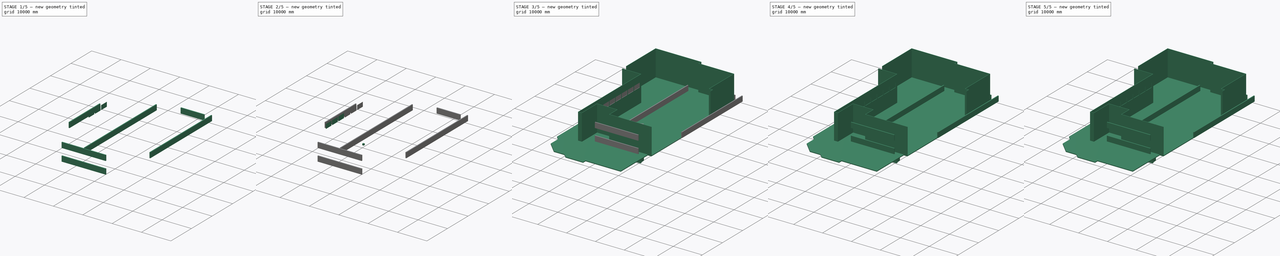
[diagram: build sequence overview — one tinted view per stage of 5, left to right]
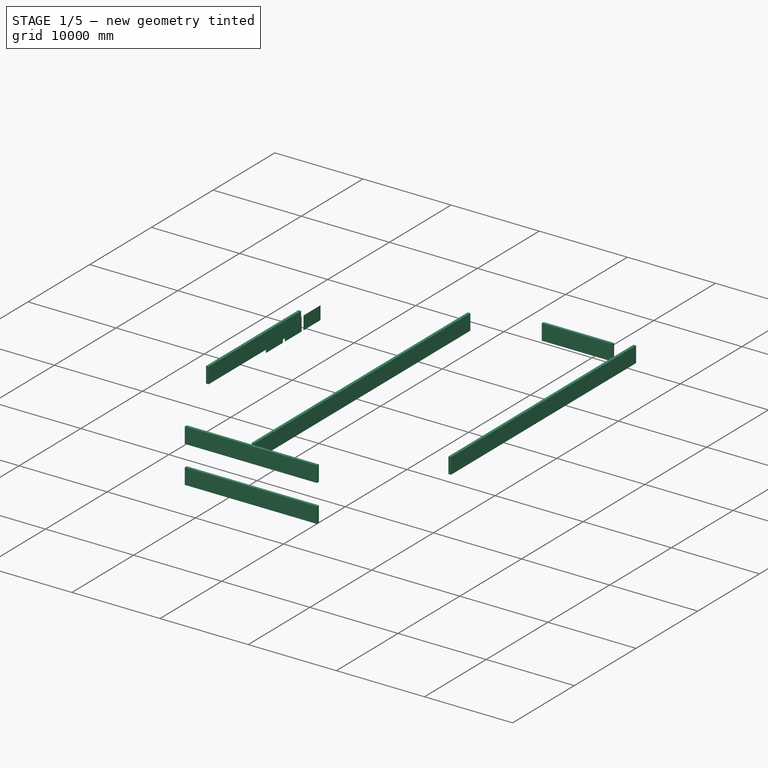
[diagram: stage 1 of 5 — iso view after this stage's code; geometry added in this stage tinted green]
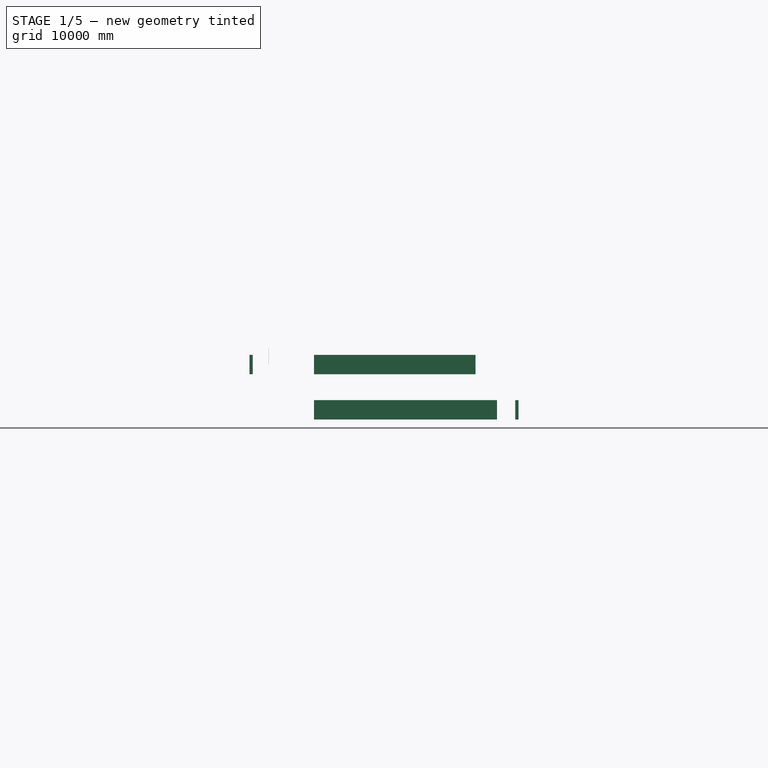
[diagram: stage 1 of 5 — front view after this stage's code; geometry added in this stage tinted green]
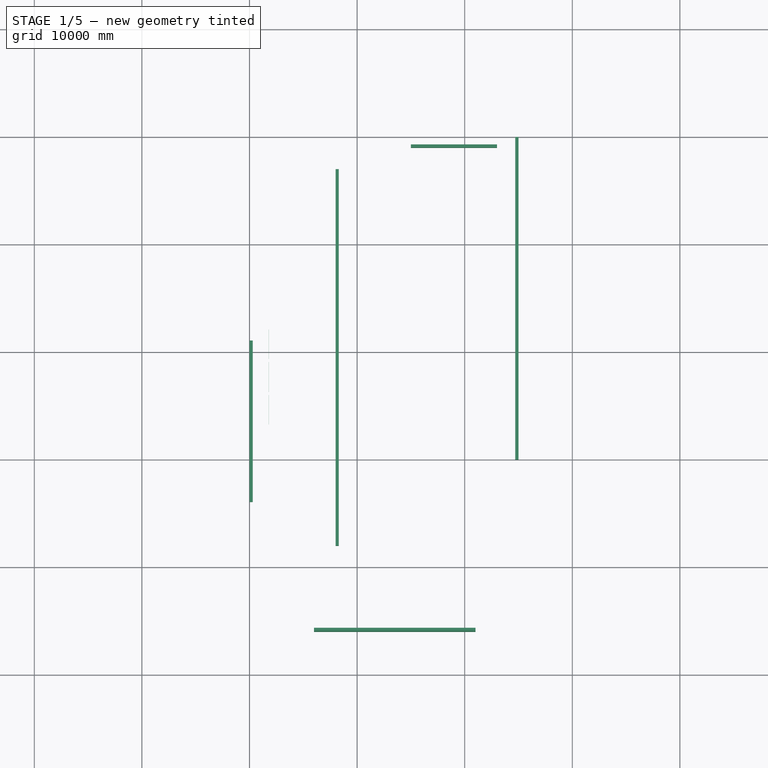
[diagram: stage 1 of 5 — top view after this stage's code; geometry added in this stage tinted green]
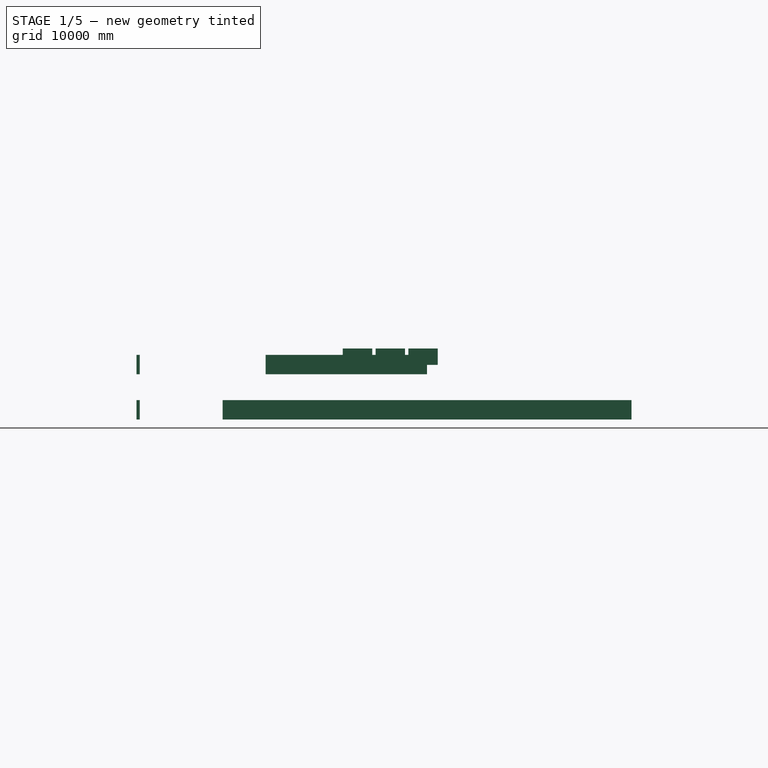
[diagram: stage 1 of 5 — right view after this stage's code; geometry added in this stage tinted green]
FCSTD DOCUMENT  (FreeCAD 1.0R39109 (Git))
Label: DetailedArcWithFloorPlan
License: All rights reserved
LicenseURL: https://en.wikipedia.org/wiki/All_rights_reserved
objects: Part::Box×26, Sketcher::SketchObject×12, PartDesign::Body×9, App::Part×8, Part::Cut×7, PartDesign::Pad×7, Measure::MeasureDistance×3, Part::Cylinder×2, Measure::MeasureLength×2, Part::Fuse×1, Part::MultiFuse×1, PartDesign::Pocket×1, Part::Sphere×1, App::LinkGroup×1, App::DocumentObjectGroup×1
note: 95 computed .brp shape members not serialized (recipe doc carries the construction recipe); baked Part::Feature solids carry a one-line shape summary decoded from their .brp

FEATURE [Part::Box] Box017  label="Glass004"
  AttacherType = Attacher::AttachEngine3D
  Height = 7
  Length = 1517.9
  Placement = pos=(-8217.93,3168.16,6587.9) rot=(0,1,0;1.5708rad)
  Width = 2737.1
FEATURE [Part::Box] Box018  label="Glass005"
  AttacherType = Attacher::AttachEngine3D
  Height = 7
  Length = 1517.9
  Placement = pos=(-8217.93,6216.16,6587.9) rot=(0,1,0;1.5708rad)
  Width = 2737.1
FEATURE [Part::Box] Box019  label="Glass006"
  AttacherType = Attacher::AttachEngine3D
  Height = 7
  Length = 1517.9
  Placement = pos=(-8217.93,9264.16,6587.9) rot=(0,1,0;1.5708rad)
  Width = 2737.1
FEATURE [App::LinkGroup] LinkGroup  label="Glass"
  ElementList = -> [Box014,Box015,Box016,Box017,Box018,Box019]
  LinkMode = 0
FEATURE [App::Part] Part003  label="Building"
  Group = -> [Body003,Body004,Body005,Body006,Body007,Box014,Box015,Box016,Box017,Box018,LinkGroup]
  Origin = -> Origin028
FEATURE [Part::Box] Box020  label="ControlRoom"
  AttacherType = Attacher::AttachEngine3D
  Height = 1800
  Length = 300
  Placement = pos=(-10000,-4000,4200) rot=(0,0,1;0rad)
  Width = 15000
FEATURE [Part::Box] Box022  label="LunchArea"
  AttacherType = Attacher::AttachEngine3D
  Height = 1800
  Length = 8000
  Placement = pos=(5000,29000,0) rot=(0,0,1;0rad)
  Width = 300
FEATURE [Part::Box] Box023  label="ParkingArea"
  AttacherType = Attacher::AttachEngine3D
  Height = 1800
  Length = 30000
  Placement = pos=(15000,2.22e-13,0) rot=(0,0,-1;4.71239rad)
  Width = 300
FEATURE [Part::Box] Box025  label="Office_1F"
  AttacherType = Attacher::AttachEngine3D
  Height = 1800
  Length = 15000
  Placement = pos=(-4000,-16000,0) rot=(0,0,1;0rad)
  Width = 300
FEATURE [Part::Box] Box026  label="Office_2F"
  AttacherType = Attacher::AttachEngine3D
  Height = 1800
  Length = 15000
  Placement = pos=(-4000,-16000,4200) rot=(0,0,1;0rad)
  Width = 300
FEATURE [Part::Box] Box028  label="OpenLab"
  AttacherType = Attacher::AttachEngine3D
  Height = 1800
  Length = 300
  Placement = pos=(-2000,-8000,0) rot=(0,0,1;0rad)
  Width = 35000
FEATURE [App::Part] Part006  label="HumanPhantoms"
  Group = -> [Box020,Box022,Box023,Box025,Box026,Box028]
  Origin = -> Origin036
FEATURE [Measure::MeasureDistance] Distance  label="Distance: 29.33 m"
  Distance = 29330.4
  DistanceX = 29330.4
  DistanceY = 7.276e-12
  DistanceZ = 0
  Element1 = -> Part003 [Body003.Pad003.Edge50]
  Element2 = -> Part006 [Box023.Edge11]
  Position1 = (-14630.4,29260.8,0)
  Position2 = (14700,29260.8,0)
FEATURE [Measure::MeasureDistance] Distance001  label="Distance001: 69.60 mm"
  Distance = 69.6
  DistanceX = 69.6
  DistanceY = 0
  DistanceZ = 0
  Element1 = -> Part003 [Body003.Pad003.Edge9]
  Element2 = -> Part006 [Box023.Edge11]
  Position1 = (14630.4,15849.6,0)
  Position2 = (14700,15849.6,0)
FEATURE [Sketcher::SketchObject] Sketch011
  ArcFitTolerance = 1e-06
  AttachmentSupport = -> [XY_Plane038]
  FullyConstrained = false
  MakeInternals = false
  MapMode = 5
  sketch-geometry (2):
    g0: LineSegment StartX=0 StartY=14904.5 StartZ=0 EndX=0 EndY=-14904.5 EndZ=0
    g1: LineSegment StartX=-14904.5 StartY=0 StartZ=0 EndX=14904.5 EndY=0 EndZ=0
  constraints (5):
    c: Vertical(g0)
    c: Horizontal(g1)
    c: Equal(g1,g0)
    c: Symmetric(g0,g0,g-1)
    c: Symmetric(g1,g1,g-1)
FEATURE [PartDesign::Body] Body008  label="CenterAxes"
  AllowCompound = false
  Group = -> [Sketch011]
  Origin = -> Origin038
FEATURE [App::Part] Part007  label="CenterGDML"
  Group = -> [Body008]
  Origin = -> Origin037
  Placement = pos=(334.8,1869.6,4374) rot=(0,0,1;0rad)
FEATURE [Measure::MeasureDistance] Distance002  label="Distance002: 29.33 m"
  Distance = 29330.4
  DistanceX = 29330.4
  DistanceY = 1.554e-13
  DistanceZ = 0
  Element1 = -> Part006 [Box023.Edge11]
  Element2 = -> Part003 [Body003.Pad003.Edge50]
  Position1 = (14700,1.554e-13,0)
  Position2 = (-14630.4,0,0)
FEATURE [Measure::MeasureLength] Length  label="Length: 610.00 mm"
  Elements = -> [Part001]
  Length = 610
FEATURE [App::DocumentObjectGroup] Measurements
  Group = -> [Distance,Distance001,Distance002,Length]
FEATURE [Measure::MeasureLength] Length001  label="Length001: 800.00 mm"
  Elements = -> [Part001]
  Length = 800
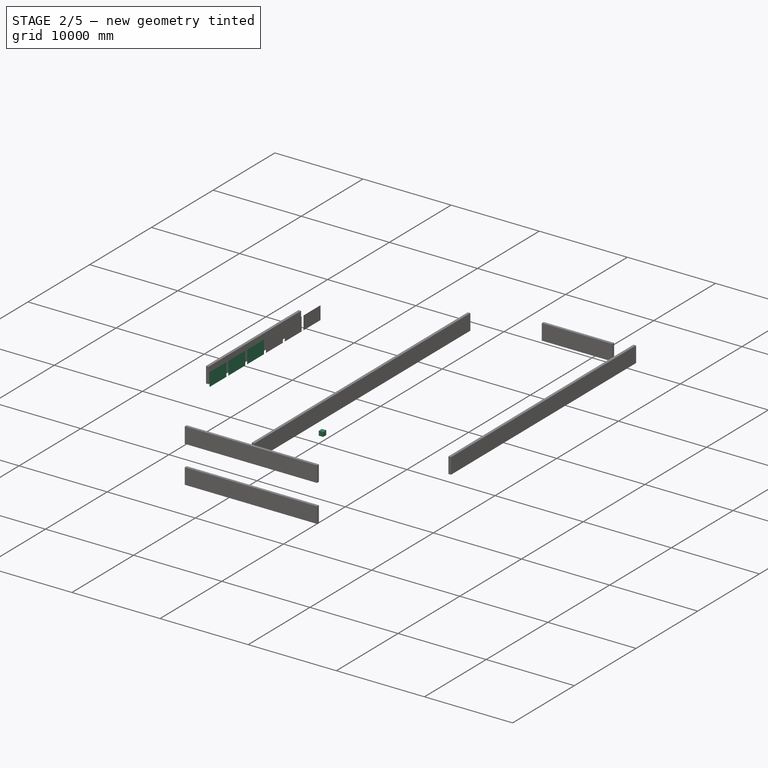
[diagram: stage 2 of 5 — iso view after this stage's code; geometry added in this stage tinted green]
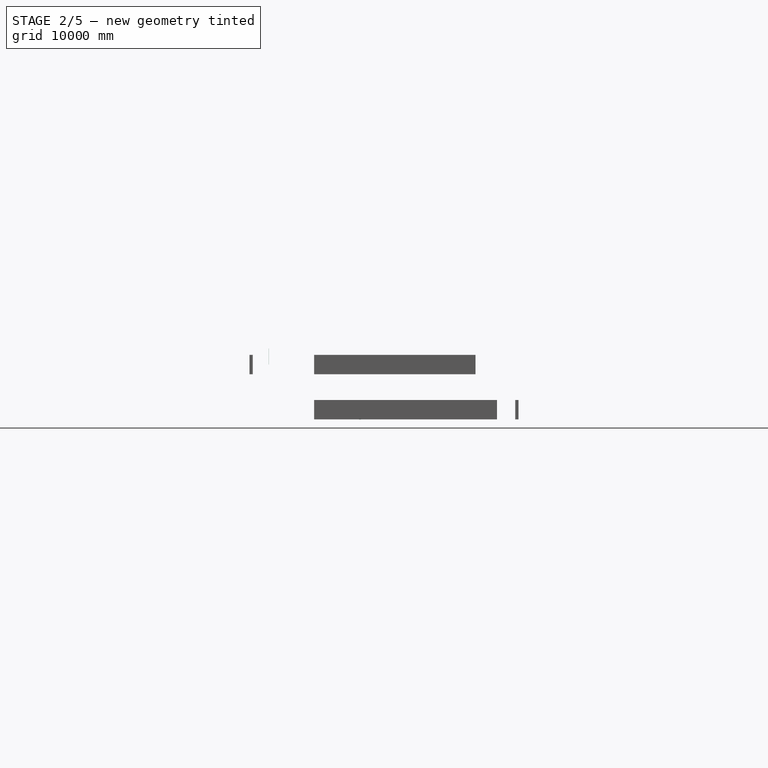
[diagram: stage 2 of 5 — front view after this stage's code; geometry added in this stage tinted green]
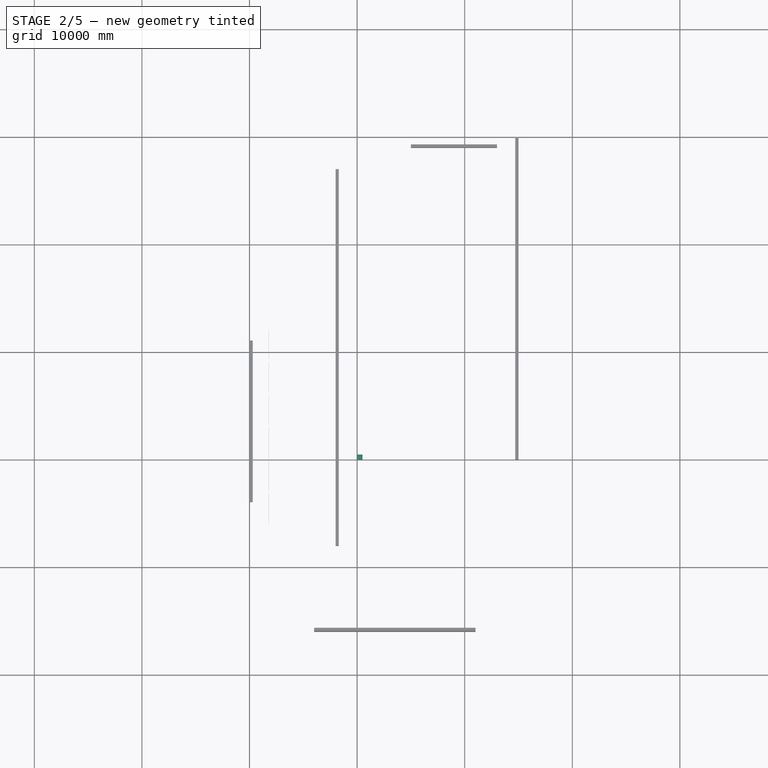
[diagram: stage 2 of 5 — top view after this stage's code; geometry added in this stage tinted green]
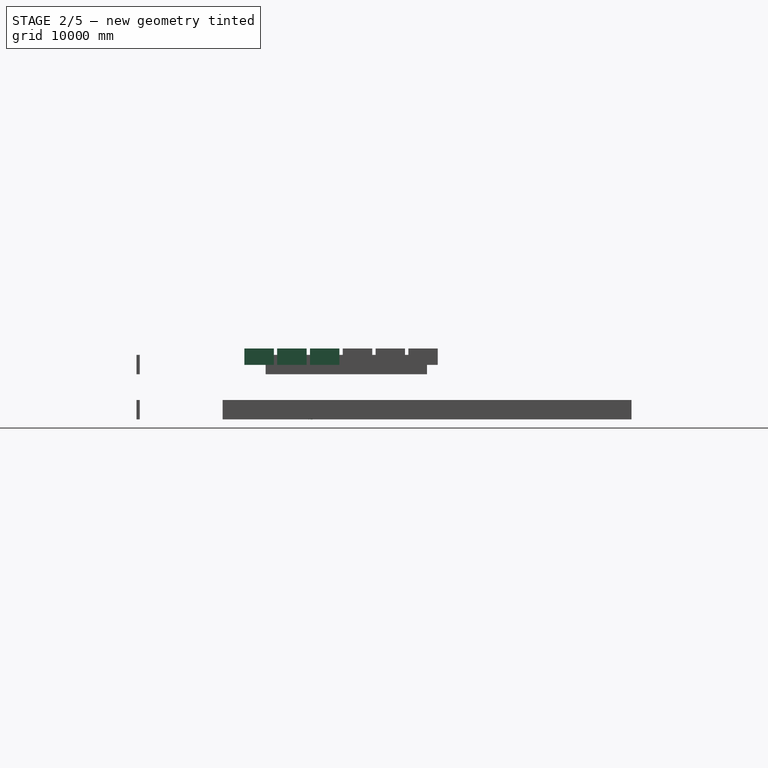
[diagram: stage 2 of 5 — right view after this stage's code; geometry added in this stage tinted green]
FEATURE [PartDesign::Body] Body007  label="SecondFloorWalls"
  AllowCompound = false
  Group = -> [Sketch009,Pad006,Sketch010,Pocket]
  Origin = -> Origin033
  Tip = -> Pocket
FEATURE [Part::Box] Box013  label="Cube012"
  AttacherType = Attacher::AttachEngine3D
  Height = 500
  Length = 500
  Width = 500
FEATURE [Part::Box] Box001  label="Cube001"
  AttacherType = Attacher::AttachEngine3D
  Height = 450
  Length = 450
  Placement = pos=(25,25,25) rot=(0,0,1;0rad)
  Width = 450
FEATURE [Part::Cut] Cut006
  Base = -> Box013
  Tool = -> Box001
FEATURE [Part::Cylinder] Cylinder
  Angle = 360
  AttacherType = Attacher::AttachEngine3D
  FirstAngle = 0
  Height = 50
  Placement = pos=(250,250,-10) rot=(0,0,1;0rad)
  Radius = 100
  SecondAngle = 0
FEATURE [Part::Cylinder] Cylinder001  label="Window"
  Angle = 360
  AttacherType = Attacher::AttachEngine3D
  FirstAngle = 0
  Height = 12.5
  Placement = pos=(250,250,0) rot=(0,0,1;0rad)
  Radius = 99.6
  SecondAngle = 0
FEATURE [App::Part] Part004  label="VacuumChamberAssembly"
  Group = -> [Box001,Cut006,Box013,Cylinder,Cut001,Cylinder001]
  Origin = -> Origin034
  Placement = pos=(9180,9800,1000) rot=(1,0,0;1.5708rad)
FEATURE [Part::Sphere] Sphere
  Angle1 = -90
  Angle2 = 90
  Angle3 = 360
  AttacherType = Attacher::AttachEngine3D
  Radius = 5
FEATURE [App::Part] Part005  label="SourceLocation"
  Group = -> [Sphere]
  Origin = -> Origin035
  Placement = pos=(9430,9400,1250) rot=(0,0,1;0rad)
FEATURE [Part::Box] Box014  label="Glass001"
  AttacherType = Attacher::AttachEngine3D
  Height = 7
  Length = 1517.9
  Placement = pos=(-8217.93,-5975.84,6587.9) rot=(0,1,0;1.5708rad)
  Width = 2737.1
FEATURE [Part::Box] Box015  label="Glass002"
  AttacherType = Attacher::AttachEngine3D
  Height = 7
  Length = 1517.9
  Placement = pos=(-8217.93,-2927.84,6587.9) rot=(0,1,0;1.5708rad)
  Width = 2737.1
FEATURE [Part::Box] Box016  label="Glass003"
  AttacherType = Attacher::AttachEngine3D
  Height = 7
  Length = 1517.9
  Placement = pos=(-8217.93,120.16,6587.9) rot=(0,1,0;1.5708rad)
  Width = 2737.1
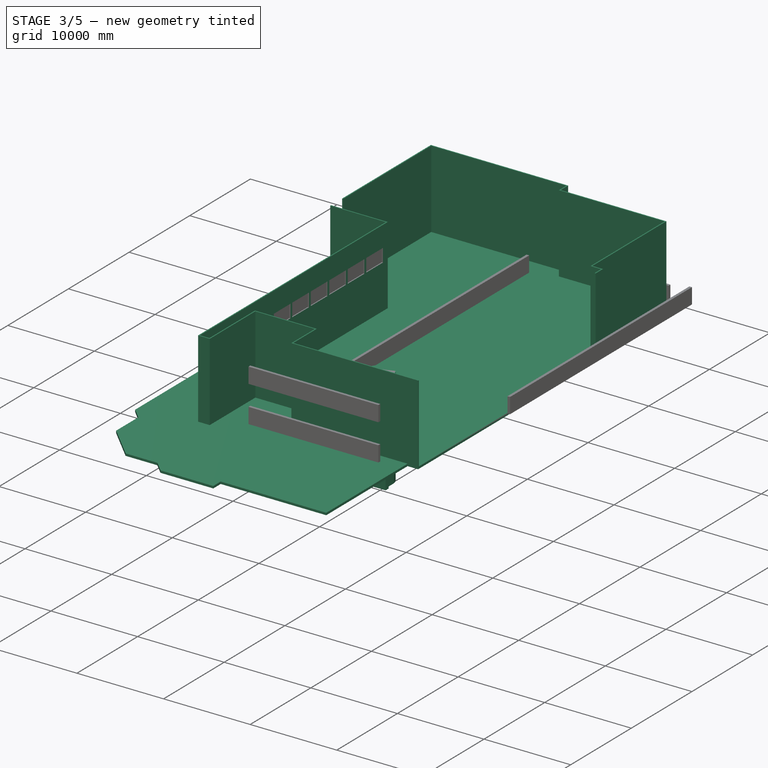
[diagram: stage 3 of 5 — iso view after this stage's code; geometry added in this stage tinted green]
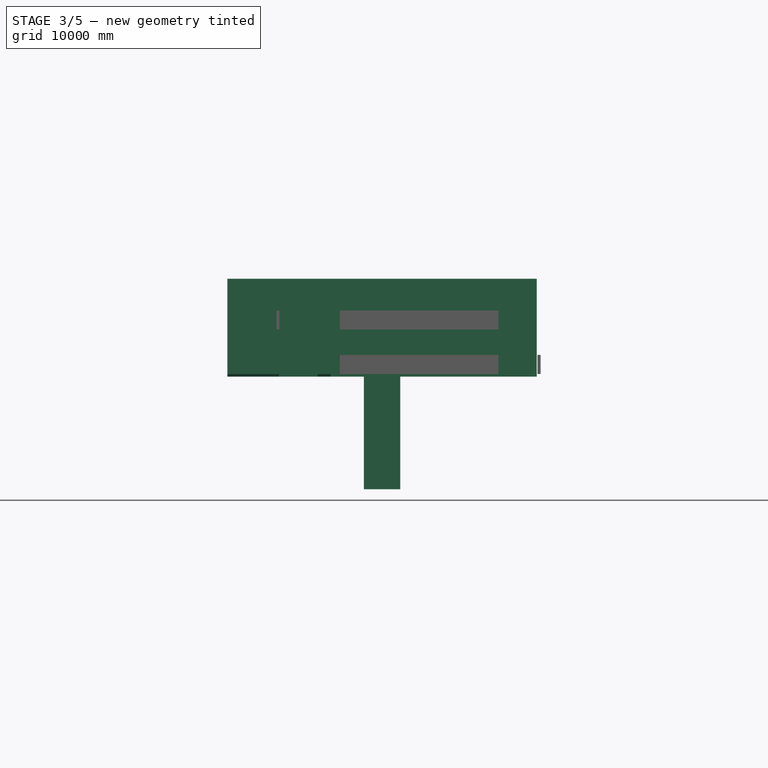
[diagram: stage 3 of 5 — front view after this stage's code; geometry added in this stage tinted green]
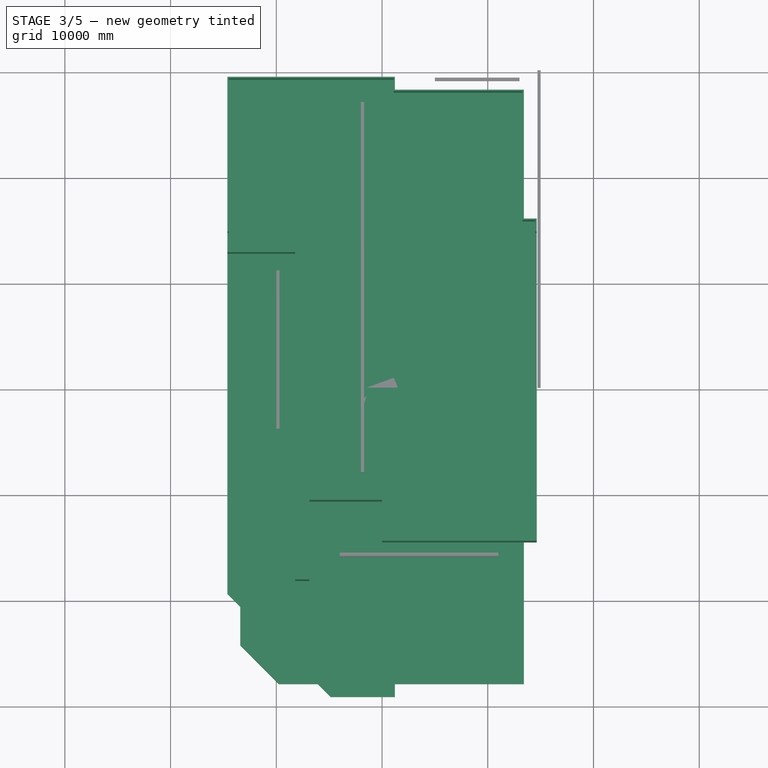
[diagram: stage 3 of 5 — top view after this stage's code; geometry added in this stage tinted green]
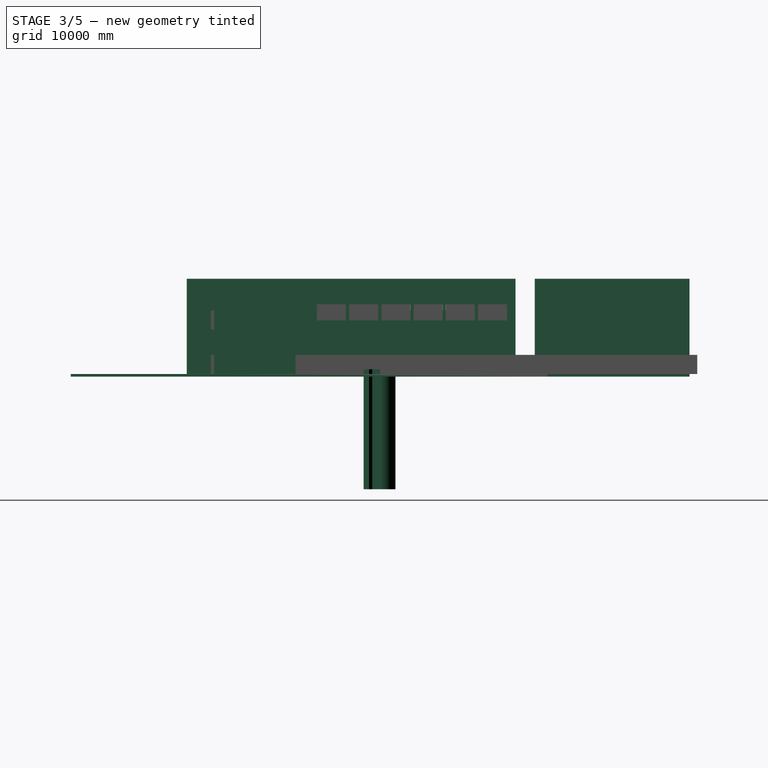
[diagram: stage 3 of 5 — right view after this stage's code; geometry added in this stage tinted green]
FEATURE [Part::Box] Box012  label="Cube011"
  AttacherType = Attacher::AttachEngine3D
  Height = 500
  Length = 500
  Placement = pos=(-50,-50,150) rot=(1,0,0;4.71239rad)
  Width = 460
FEATURE [App::Part] Part001  label="BeamDumpAssembly"
  Group = -> [Box004,Box003,Fusion,Box010,Box011,Cut005,Box002,Box005,Box006,Cut002,Cut003,Cut004,Box007,Box008,Box009,Fusion001,Box,Box012,Cut]
  Origin = -> Origin024
  Placement = pos=(9230,12000,1450) rot=(1,0,0;4.71239rad)
FEATURE [Sketcher::SketchObject] Sketch001
  ArcFitTolerance = 1e-06
  AttachmentSupport = -> [XY_Plane026]
  FullyConstrained = true
  MakeInternals = false
  MapMode = 5
  sketch-geometry (12):
    g0: ArcOfCircle CenterX=0 CenterY=0 CenterZ=0 NormalX=0 NormalY=0 NormalZ=1 AngleXU=0 Radius=1012 StartAngle=0 EndAngle=3.14159
    g1: ArcOfCircle CenterX=0 CenterY=0 CenterZ=0 NormalX=0 NormalY=0 NormalZ=1 AngleXU=0 Radius=1462 StartAngle=0 EndAngle=3.14159
    g2: LineSegment StartX=-1462 StartY=1.79e-13 StartZ=0 EndX=-1462 EndY=-745 EndZ=0
    g3: LineSegment StartX=-1462 StartY=-745 StartZ=0 EndX=-1718 EndY=-1051 EndZ=0
    g4: LineSegment StartX=-1718 StartY=-1051 StartZ=0 EndX=-1718 EndY=-1556 EndZ=0
    g5: LineSegment StartX=-1718 StartY=-1556 StartZ=0 EndX=1718 EndY=-1556 EndZ=0
    g6: LineSegment StartX=1718 StartY=-1556 StartZ=0 EndX=1718 EndY=-1051 EndZ=0
    g7: LineSegment StartX=1718 StartY=-1051 StartZ=0 EndX=1462 EndY=-745 EndZ=0
    g8: LineSegment StartX=1462 StartY=-745 StartZ=0 EndX=1462 EndY=0 EndZ=0
    g9: LineSegment StartX=-1012 StartY=1.239e-13 StartZ=0 EndX=-1012 EndY=-1190 EndZ=0
    g10: LineSegment StartX=-1012 StartY=-1190 StartZ=0 EndX=1012 EndY=-1190 EndZ=0
    g11: LineSegment StartX=1012 StartY=-1190 StartZ=0 EndX=1012 EndY=0 EndZ=0
  constraints (33):
    c: Coincident(g0,g-1)
    c: Coincident(g1,g0)
    c: PointOnObject(g0,g-1)
    c: PointOnObject(g1,g-1)
    c: PointOnObject(g0,g-1)
    c: PointOnObject(g1,g-1)
    c: Radius(g0) = 1012
    c: Radius(g1) = 1462
    c: Tangent(g1,g2) = -1.5708
    c: Coincident(g2,g3)
    c: Coincident(g3,g4)
    c: Vertical(g4)
    c: Coincident(g4,g5)
    c: Coincident(g5,g6)
    c: Vertical(g6)
    c: Coincident(g6,g7)
    c: Coincident(g7,g8)
    c: Coincident(g8,g1)
    c: Vertical(g8)
    c: Tangent(g0,g9) = -1.5708
    c: Coincident(g9,g10)
    c: Horizontal(g10)
    c: Coincident(g10,g11)
    c: Coincident(g11,g0)
    c: Vertical(g11)
    c: DistanceY(g11,g11) = 1190
    c: Symmetric(g4,g5,g-2)
    c: Distance(g4,g-1) = 1556
    c: DistanceY(g4,g4) = 505
    c: DistanceY(g2,g2) = 745
    c: DistanceX(g5,g5) = 3436
    c: Equal(g8,g2)
    c: Equal(g4,g6)
FEATURE [PartDesign::Pad] Pad
  Direction = (0,0,1)
  Length = 10250
  Length2 = 10
  Profile = -> Sketch001
  ReferenceAxis = -> Sketch001 [N_Axis]
  Refine = true
  Reversed = true
  Suppressed = false
  Type = 0
FEATURE [Sketcher::SketchObject] Sketch002
  ArcFitTolerance = 1e-06
  AttachmentSupport = -> [Pad]
  ExternalGeometry = -> [Pad]
  FullyConstrained = true
  MakeInternals = false
  MapMode = 5
  sketch-geometry (8):
    g0: LineSegment StartX=-1462 StartY=0 StartZ=0 EndX=-1462 EndY=-745 EndZ=0
    g1: LineSegment StartX=-1462 StartY=-745 StartZ=0 EndX=-1718 EndY=-1051 EndZ=0
    g2: LineSegment StartX=-1718 StartY=-1051 StartZ=0 EndX=-1718 EndY=-1556 EndZ=0
    g3: LineSegment StartX=-1718 StartY=-1556 StartZ=0 EndX=1718 EndY=-1556 EndZ=0
    g4: LineSegment StartX=1718 StartY=-1556 StartZ=0 EndX=1718 EndY=-1051 EndZ=0
    g5: LineSegment StartX=1718 StartY=-1051 StartZ=0 EndX=1462 EndY=-745 EndZ=0
    g6: LineSegment StartX=1462 StartY=-745 StartZ=0 EndX=1462 EndY=0 EndZ=0
    g7: ArcOfCircle CenterX=0 CenterY=0 CenterZ=0 NormalX=0 NormalY=0 NormalZ=1 AngleXU=0 Radius=1462 StartAngle=0 EndAngle=3.14159
  constraints (21):
    c: Coincident(g0,g1)
    c: Coincident(g1,g-6)
    c: Coincident(g1,g2)
    c: Coincident(g2,g-7)
    c: Coincident(g2,g3)
    c: Coincident(g3,g-8)
    c: Coincident(g3,g4)
    c: Coincident(g4,g-9)
    c: Coincident(g4,g5)
    c: Coincident(g5,g-10)
    c: Coincident(g5,g6)
    c: PointOnObject(g6,g-10)
    c: PointOnObject(g0,g-1)
    c: PointOnObject(g0,g-4)
    c: Parallel(g1,g-5)
    c: Equal(g0,g-4)
    c: PointOnObject(g6,g-1)
    c: Coincident(g7,g-1)
    c: PointOnObject(g7,g-1)
    c: PointOnObject(g7,g-1)
    c: Equal(g7,g-3)
FEATURE [PartDesign::Pad] Pad001
  BaseFeature = -> Pad
  Direction = (0,0,1)
  Length = 450
  Length2 = 10
  Profile = -> Sketch002
  ReferenceAxis = -> Sketch002 [N_Axis]
  Refine = true
  Suppressed = false
  Type = 0
FEATURE [Sketcher::SketchObject] Sketch003
  ArcFitTolerance = 1e-06
  AttachmentSupport = -> [Pad001]
  ExternalGeometry = -> [Pad001]
  FullyConstrained = true
  MakeInternals = false
  MapMode = 5
  Placement = pos=(0,0,-10250) rot=(1,0,0;3.14159rad)
  sketch-geometry (8):
    g0: LineSegment StartX=-1462 StartY=0 StartZ=0 EndX=-1462 EndY=745 EndZ=0
    g1: LineSegment StartX=-1462 StartY=745 StartZ=0 EndX=-1718 EndY=1051 EndZ=0
    g2: LineSegment StartX=-1718 StartY=1051 StartZ=0 EndX=-1718 EndY=1556 EndZ=0
    g3: LineSegment StartX=-1718 StartY=1556 StartZ=0 EndX=1718 EndY=1556 EndZ=0
    g4: LineSegment StartX=1718 StartY=1556 StartZ=0 EndX=1718 EndY=1051 EndZ=0
    g5: LineSegment StartX=1718 StartY=1051 StartZ=0 EndX=1462 EndY=745 EndZ=0
    g6: LineSegment StartX=1462 StartY=745 StartZ=0 EndX=1462 EndY=0 EndZ=0
    g7: ArcOfCircle CenterX=0 CenterY=0 CenterZ=0 NormalX=0 NormalY=0 NormalZ=1 AngleXU=0 Radius=1462 StartAngle=3.14159 EndAngle=6.28319
  constraints (26):
    c: PointOnObject(g0,g-1)
    c: Vertical(g0)
    c: Coincident(g0,g1)
    c: Coincident(g1,g2)
    c: Vertical(g2)
    c: Coincident(g2,g3)
    c: Horizontal(g3)
    c: Coincident(g3,g4)
    c: Vertical(g4)
    c: Coincident(g4,g5)
    c: Coincident(g5,g6)
    c: PointOnObject(g6,g-1)
    c: Vertical(g6)
    c: PointOnObject(g6,g-8)
    c: PointOnObject(g0,g-6)
    c: Parallel(g1,g-5)
    c: Equal(g1,g-5)
    c: PointOnObject(g0,g-5)
    c: Equal(g6,g-8)
    c: Equal(g5,g-9)
    c: Parallel(g5,g-9)
    c: Coincident(g7,g-1)
    c: PointOnObject(g7,g-1)
    c: PointOnObject(g7,g-1)
    c: Equal(g7,g-7)
    c: PointOnObject(g3,g-3)
FEATURE [PartDesign::Pad] Pad002
  BaseFeature = -> Pad001
  Direction = (0,0,-1)
  Length = 650
  Length2 = 10
  Profile = -> Sketch003
  ReferenceAxis = -> Sketch003 [N_Axis]
  Refine = true
  Suppressed = false
  Type = 0
FEATURE [PartDesign::Body] Body001  label="Arc"
  AllowCompound = false
  Group = -> [Sketch001,Pad,Sketch002,Pad001,Sketch003,Pad002]
  Origin = -> Origin026
  Tip = -> Pad002
FEATURE [App::Part] Part002  label="ConcreteVault"
  Group = -> [Body001]
  Origin = -> Origin025
  Placement = pos=(9430,7370,1560) rot=(-1,0,0;4.71239rad)
FEATURE [Sketcher::SketchObject] Sketch004
  ArcFitTolerance = 1e-06
  AttachmentSupport = -> [XY_Plane027]
  FullyConstrained = true
  MakeInternals = false
  MapMode = 5
  sketch-geometry (24):
    g0: LineSegment [constr] StartX=14630.4 StartY=29260.8 StartZ=0 EndX=-14630.4 EndY=29260.8 EndZ=0
    g1: LineSegment [constr] StartX=-14630.4 StartY=29260.8 StartZ=0 EndX=-14630.4 EndY=-29260.8 EndZ=0
    g2: LineSegment [constr] StartX=-14630.4 StartY=-29260.8 StartZ=0 EndX=14630.4 EndY=-29260.8 EndZ=0
    g3: LineSegment [constr] StartX=14630.4 StartY=-29260.8 StartZ=0 EndX=14630.4 EndY=29260.8 EndZ=0
    g4: LineSegment [constr] StartX=-14630.4 StartY=-14630.4 StartZ=0 EndX=14630.4 EndY=-14630.4 EndZ=0
    g5: LineSegment [constr] StartX=-14630.4 StartY=14630.4 StartZ=0 EndX=14630.4 EndY=14630.4 EndZ=0
    g6: LineSegment [constr] StartX=-13411.2 StartY=-28041.6 StartZ=0 EndX=13411.2 EndY=-28041.6 EndZ=0
    g7: LineSegment [constr] StartX=13411.2 StartY=-28041.6 StartZ=0 EndX=13411.2 EndY=28041.6 EndZ=0
    g8: LineSegment [constr] StartX=13411.2 StartY=28041.6 StartZ=0 EndX=-13411.2 EndY=28041.6 EndZ=0
    g9: LineSegment [constr] StartX=-13411.2 StartY=28041.6 StartZ=0 EndX=-13411.2 EndY=-28041.6 EndZ=0
    g10: LineSegment [constr] StartX=-14630.4 StartY=-19507.2 StartZ=0 EndX=-4876.8 EndY=-29260.8 EndZ=0
    g11: GeomPoint [constr] X=-14630.4 Y=-24384 Z=0
    g12: LineSegment [constr] StartX=-14630.4 StartY=-24384 StartZ=0 EndX=14630.4 EndY=-24384 EndZ=0
    g13: GeomPoint [constr] X=-13411.2 Y=-24384 Z=0
    g14: GeomPoint [constr] X=-14630.4 Y=-18288 Z=0
    g15: LineSegment [constr] StartX=-14630.4 StartY=-18288 StartZ=0 EndX=14630.4 EndY=-18288 EndZ=0
    g16: LineSegment StartX=1219.1 StartY=26085.7 StartZ=0 EndX=1219.1 EndY=6121.3 EndZ=0
    g17: LineSegment StartX=1219.1 StartY=6121.3 StartZ=0 EndX=11455.3 EndY=6121.3 EndZ=0
    g18: LineSegment StartX=11455.3 StartY=6121.3 StartZ=0 EndX=11455.3 EndY=26085.7 EndZ=0
    g19: LineSegment StartX=11455.3 StartY=26085.7 StartZ=0 EndX=1219.1 EndY=26085.7 EndZ=0
    g20: LineSegment StartX=8925.46 StartY=5791.1 StartZ=0 EndX=-6314.54 EndY=5791.1 EndZ=0
    g21: LineSegment StartX=-6314.54 StartY=5791.1 StartZ=0 EndX=-6314.54 EndY=-9448.9 EndZ=0
    g22: LineSegment StartX=-6314.54 StartY=-9448.9 StartZ=0 EndX=8925.46 EndY=-9448.9 EndZ=0
    g23: LineSegment StartX=8925.46 StartY=-9448.9 StartZ=0 EndX=8925.46 EndY=5791.1 EndZ=0
  constraints (68):
    c: Coincident(g0,g1)
    c: Coincident(g1,g2)
    c: Coincident(g2,g3)
    c: Coincident(g3,g0)
    c: Horizontal(g0)
    c: Horizontal(g2)
    c: Vertical(g1)
    c: Vertical(g3)
    c: Symmetric(g0,g1,g-1)
    c: DistanceY(g3,g3) = 58521.6
    c: DistanceX(g0,g0) = 29260.8
    c: PointOnObject(g4,g1)
    c: PointOnObject(g4,g3)
    c: Horizontal(g4)
    c: PointOnObject(g5,g3)
    c: Horizontal(g5)
    c: Symmetric(g5,g4,g-1)
    c: DistanceY(g4,g5) = 29260.8
    c: Coincident(g6,g7)
    c: Coincident(g7,g8)
    c: Coincident(g8,g9)
    c: Coincident(g9,g6)
    c: Horizontal(g6)
    c: Horizontal(g8)
    c: Vertical(g7)
    c: Vertical(g9)
    c: Symmetric(g7,g6,g-1)
    c: Distance(g6,g1) = 1219.2
    c: Distance(g6,g2) = 1219.2
    c: PointOnObject(g10,g1)
    c: PointOnObject(g10,g2)
    c: Distance(g10,g4) = 4876.8
    c: Angle(g1,g10) = 0.785398
    c: Symmetric(g1,g10,g11)
    c: Coincident(g12,g11)
    c: Horizontal(g12)
    c: PointOnObject(g12,g3)
    c: PointOnObject(g13,g9)
    c: PointOnObject(g13,g12)
    c: Distance(g14,g4) = 3657.6
    c: Coincident(g15,g14)
    c: PointOnObject(g15,g3)
    c: Horizontal(g15)
    c: PointOnObject(g14,g1)
    c: Coincident(g16,g17)
    c: Coincident(g17,g18)
    c: Coincident(g18,g19)
    c: Coincident(g19,g16)
    c: Vertical(g16)
    c: Vertical(g18)
    c: Horizontal(g17)
    c: Horizontal(g19)
    c: Distance(g18,g0) = 3175.1
    c: Distance(g18,g3) = 3175.1
    c: DistanceY(g16,g16) = 19964.4
    c: DistanceX(g17,g17) = 10236.2
    c: Coincident(g20,g21)
    c: Coincident(g21,g22)
    c: Coincident(g22,g23)
    c: Coincident(g23,g20)
    c: Horizontal(g20)
    c: Horizontal(g22)
    c: Vertical(g21)
    c: Vertical(g23)
    c: Distance(g20,g17) = 330.2
    c: Distance(g22,g3) = 5704.94
    c: DistanceX(g20,g20) = 15240
    c: Equal(g20,g23)
FEATURE [PartDesign::Body] Body002  label="FloorPlanWhole001"
  AllowCompound = false
  Group = -> [Sketch004]
  Origin = -> Origin027
FEATURE [App::Part] Part  label="BuildingDraw_DONOTDELETE"
  Group = -> [Body,Body002]
  Origin = -> Origin
  Placement = pos=(0,0,5000) rot=(0,0,1;0rad)
FEATURE [Sketcher::SketchObject] Sketch005
  ArcFitTolerance = 1e-06
  AttachmentSupport = -> [XY_Plane029]
  FullyConstrained = true
  MakeInternals = false
  MapMode = 5
  sketch-geometry (41):
    g0: LineSegment [constr] StartX=14630.4 StartY=29260.8 StartZ=0 EndX=-14630.4 EndY=29260.8 EndZ=0
    g1: LineSegment [constr] StartX=-14630.4 StartY=29260.8 StartZ=0 EndX=-14630.4 EndY=-29260.8 EndZ=0
    g2: LineSegment [constr] StartX=-14630.4 StartY=-29260.8 StartZ=0 EndX=14630.4 EndY=-29260.8 EndZ=0
    g3: LineSegment [constr] StartX=14630.4 StartY=-29260.8 StartZ=0 EndX=14630.4 EndY=29260.8 EndZ=0
    g4: LineSegment [constr] StartX=-14630.4 StartY=-14630.4 StartZ=0 EndX=14630.4 EndY=-14630.4 EndZ=0
    g5: LineSegment [constr] StartX=-14630.4 StartY=14630.4 StartZ=0 EndX=14630.4 EndY=14630.4 EndZ=0
    g6: LineSegment [constr] StartX=-13411.2 StartY=-28041.6 StartZ=0 EndX=13411.2 EndY=-28041.6 EndZ=0
    g7: LineSegment [constr] StartX=13411.2 StartY=-28041.6 StartZ=0 EndX=13411.2 EndY=28041.6 EndZ=0
    g8: LineSegment [constr] StartX=13411.2 StartY=28041.6 StartZ=0 EndX=-13411.2 EndY=28041.6 EndZ=0
    g9: LineSegment [constr] StartX=-13411.2 StartY=28041.6 StartZ=0 EndX=-13411.2 EndY=-28041.6 EndZ=0
    g10: LineSegment StartX=13411.2 StartY=15849.6 StartZ=0 EndX=14630.4 EndY=15849.6 EndZ=0
    g11: LineSegment StartX=1219.2 StartY=28041.6 StartZ=0 EndX=1219.2 EndY=29260.8 EndZ=0
    g12: LineSegment StartX=13411.2 StartY=15849.6 StartZ=0 EndX=13411.2 EndY=28041.6 EndZ=0
    g13: LineSegment StartX=13411.2 StartY=28041.6 StartZ=0 EndX=1219.2 EndY=28041.6 EndZ=0
    g14: LineSegment StartX=14630.4 StartY=15849.6 StartZ=0 EndX=14630.4 EndY=-14630.4 EndZ=0
    g15: LineSegment StartX=14630.4 StartY=-14630.4 StartZ=0 EndX=13411.2 EndY=-14630.4 EndZ=0
    g16: LineSegment StartX=13411.2 StartY=-14630.4 StartZ=0 EndX=13411.2 EndY=-28041.6 EndZ=0
    g17: LineSegment StartX=1219.2 StartY=-28041.6 StartZ=0 EndX=1219.2 EndY=-29260.8 EndZ=0
    g18: LineSegment StartX=13411.2 StartY=-28041.6 StartZ=0 EndX=1219.2 EndY=-28041.6 EndZ=0
    g19: LineSegment StartX=1219.2 StartY=29260.8 StartZ=0 EndX=-14630.4 EndY=29260.8 EndZ=0
    g20: LineSegment StartX=-14630.4 StartY=29260.8 StartZ=0 EndX=-14630.4 EndY=-14630.4 EndZ=0
    g21: GeomPoint X=-14630.4 Y=-19507.2 Z=0
    g22: GeomPoint X=-4876.8 Y=-29260.8 Z=0
    g23: LineSegment [constr] StartX=-14630.4 StartY=-19507.2 StartZ=0 EndX=-4876.8 EndY=-29260.8 EndZ=0
    g24: LineSegment StartX=-14630.4 StartY=-19507.2 StartZ=0 EndX=-14630.4 EndY=-14630.4 EndZ=0
    g25: LineSegment StartX=1219.2 StartY=-29260.8 StartZ=0 EndX=-4876.8 EndY=-29260.8 EndZ=0
    g26: GeomPoint X=-6096 Y=-28041.6 Z=0
    g27: GeomPoint X=-13411.2 Y=-20726.4 Z=0
    g28: GeomPoint [constr] X=-14630.4 Y=-24384 Z=0
    g29: LineSegment [constr] StartX=-14630.4 StartY=-24384 StartZ=0 EndX=14630.4 EndY=-24384 EndZ=0
    g30: GeomPoint [constr] X=-13411.2 Y=-24384 Z=0
    g31: LineSegment StartX=-14630.4 StartY=-19507.2 StartZ=0 EndX=-13411.2 EndY=-20726.4 EndZ=0
    g32: LineSegment StartX=-13411.2 StartY=-20726.4 StartZ=0 EndX=-13411.2 EndY=-24384 EndZ=0
    g33: LineSegment StartX=-13411.2 StartY=-24384 StartZ=0 EndX=-9753.6 EndY=-28041.6 EndZ=0
    g34: LineSegment StartX=-4876.8 StartY=-29260.8 StartZ=0 EndX=-6096 EndY=-28041.6 EndZ=0
    g35: LineSegment StartX=-9753.6 StartY=-28041.6 StartZ=0 EndX=-6096 EndY=-28041.6 EndZ=0
    g36: GeomPoint [constr] X=-14630.4 Y=-18288 Z=0
    g37: LineSegment [constr] StartX=-14630.4 StartY=-18288 StartZ=0 EndX=14630.4 EndY=-18288 EndZ=0
    g38: GeomPoint [constr] X=-6314.54 Y=0 Z=0
    g39: LineSegment [constr] StartX=-8219.54 StartY=29260.8 StartZ=0 EndX=-8219.54 EndY=-18288 EndZ=0
    g40: GeomPoint [constr] X=7.069e-13 Y=-14630.4 Z=0
  constraints (101):
    c: Coincident(g0,g1)
    c: Coincident(g1,g2)
    c: Coincident(g2,g3)
    c: Coincident(g3,g0)
    c: Horizontal(g0)
    c: Horizontal(g2)
    c: Vertical(g1)
    c: Vertical(g3)
    c: Symmetric(g0,g1,g-1)
    c: DistanceY(g3,g3) = 58521.6
    c: DistanceX(g0,g0) = 29260.8
    c: PointOnObject(g4,g1)
    c: PointOnObject(g4,g3)
    c: Horizontal(g4)
    c: PointOnObject(g5,g3)
    c: Horizontal(g5)
    c: Symmetric(g5,g4,g-1)
    c: DistanceY(g4,g5) = 29260.8
    c: Coincident(g6,g7)
    c: Coincident(g7,g8)
    c: Coincident(g8,g9)
    c: Coincident(g9,g6)
    c: Horizontal(g6)
    c: Horizontal(g8)
    c: Vertical(g7)
    c: Vertical(g9)
    c: Symmetric(g7,g6,g-1)
    c: Distance(g6,g1) = 1219.2
    c: Distance(g6,g2) = 1219.2
    c: PointOnObject(g10,g7)
    c: PointOnObject(g10,g3)
    c: Horizontal(g10)
    c: PointOnObject(g11,g8)
    c: PointOnObject(g11,g0)
    c: Vertical(g11)
    c: Distance(g11,g-2) = 1219.2
    c: Distance(g10,g5) = 1219.2
    c: Coincident(g12,g10)
    c: Coincident(g12,g7)
    c: Coincident(g13,g7)
    c: Coincident(g13,g11)
    c: Coincident(g14,g4)
    c: Coincident(g14,g10)
    c: Coincident(g15,g4)
    c: PointOnObject(g15,g7)
    c: PointOnObject(g15,g4)
    c: Coincident(g16,g15)
    c: Coincident(g16,g6)
    c: PointOnObject(g17,g6)
    c: PointOnObject(g17,g2)
    c: Vertical(g17)
    c: Distance(g17,g-2) = 1219.2
    c: Coincident(g18,g6)
    c: Coincident(g18,g17)
    c: Coincident(g19,g11)
    c: Coincident(g19,g0)
    c: Coincident(g20,g0)
    c: Coincident(g20,g4)
    c: PointOnObject(g21,g1)
    c: PointOnObject(g22,g2)
    c: Distance(g21,g4) = 4876.8
    c: Coincident(g23,g21)
    c: Coincident(g23,g22)
    c: Angle(g1,g23) = 0.785398
    c: Coincident(g24,g21)
    c: Coincident(g24,g4)
    c: Coincident(g25,g17)
    c: Coincident(g25,g22)
    c: PointOnObject(g26,g23)
    c: PointOnObject(g27,g23)
    c: PointOnObject(g26,g6)
    c: PointOnObject(g27,g9)
    c: Symmetric(g1,g21,g28)
    c: Coincident(g29,g28)
    c: Horizontal(g29)
    c: PointOnObject(g29,g3)
    c: PointOnObject(g30,g9)
    c: PointOnObject(g30,g29)
    c: Coincident(g31,g21)
    c: Coincident(g31,g27)
    c: Coincident(g32,g27)
    c: Coincident(g32,g30)
    c: Coincident(g33,g30)
    c: PointOnObject(g33,g6)
    c: Angle(g9,g33) = 0.785398
    c: Coincident(g34,g22)
    c: Coincident(g34,g26)
    c: Coincident(g35,g33)
    c: Coincident(g35,g26)
    c: PointOnObject(g36,g24)
    c: Distance(g36,g4) = 3657.6
    c: Coincident(g37,g36)
    c: PointOnObject(g37,g3)
    c: Horizontal(g37)
    c: PointOnObject(g38,g-1)
    c: Distance(g38,g-2) = 6314.54
    c: PointOnObject(g39,g37)
    c: Vertical(g39)
    c: Distance(g38,g39) = 1905
    c: Symmetric(g4,g4,g40)
    c: PointOnObject(g39,g19)
FEATURE [Sketcher::SketchObject] Sketch006
  ArcFitTolerance = 1e-06
  AttachmentSupport = -> [XY_Plane030]
  FullyConstrained = true
  MakeInternals = false
  MapMode = 5
  sketch-geometry (24):
    g0: LineSegment [constr] StartX=14630.4 StartY=29260.8 StartZ=0 EndX=-14630.4 EndY=29260.8 EndZ=0
    g1: LineSegment [constr] StartX=-14630.4 StartY=29260.8 StartZ=0 EndX=-14630.4 EndY=-29260.8 EndZ=0
    g2: LineSegment [constr] StartX=-14630.4 StartY=-29260.8 StartZ=0 EndX=14630.4 EndY=-29260.8 EndZ=0
    g3: LineSegment [constr] StartX=14630.4 StartY=-29260.8 StartZ=0 EndX=14630.4 EndY=29260.8 EndZ=0
    g4: LineSegment [constr] StartX=-14630.4 StartY=-14630.4 StartZ=0 EndX=14630.4 EndY=-14630.4 EndZ=0
    g5: LineSegment [constr] StartX=-14630.4 StartY=14630.4 StartZ=0 EndX=14630.4 EndY=14630.4 EndZ=0
    g6: LineSegment [constr] StartX=-13411.2 StartY=-28041.6 StartZ=0 EndX=13411.2 EndY=-28041.6 EndZ=0
    g7: LineSegment [constr] StartX=13411.2 StartY=-28041.6 StartZ=0 EndX=13411.2 EndY=28041.6 EndZ=0
    g8: LineSegment [constr] StartX=13411.2 StartY=28041.6 StartZ=0 EndX=-13411.2 EndY=28041.6 EndZ=0
    g9: LineSegment [constr] StartX=-13411.2 StartY=28041.6 StartZ=0 EndX=-13411.2 EndY=-28041.6 EndZ=0
    g10: LineSegment [constr] StartX=-14630.4 StartY=-19507.2 StartZ=0 EndX=-4876.8 EndY=-29260.8 EndZ=0
    g11: GeomPoint [constr] X=-14630.4 Y=-24384 Z=0
    g12: LineSegment [constr] StartX=-14630.4 StartY=-24384 StartZ=0 EndX=14630.4 EndY=-24384 EndZ=0
    g13: GeomPoint [constr] X=-13411.2 Y=-24384 Z=0
    g14: GeomPoint [constr] X=-14630.4 Y=-18288 Z=0
    g15: LineSegment [constr] StartX=-14630.4 StartY=-18288 StartZ=0 EndX=14630.4 EndY=-18288 EndZ=0
    g16: LineSegment StartX=1219.1 StartY=26085.7 StartZ=0 EndX=1219.1 EndY=6121.3 EndZ=0
    g17: LineSegment StartX=1219.1 StartY=6121.3 StartZ=0 EndX=11455.3 EndY=6121.3 EndZ=0
    g18: LineSegment StartX=11455.3 StartY=6121.3 StartZ=0 EndX=11455.3 EndY=26085.7 EndZ=0
    g19: LineSegment StartX=11455.3 StartY=26085.7 StartZ=0 EndX=1219.1 EndY=26085.7 EndZ=0
    g20: LineSegment StartX=8925.46 StartY=5791.1 StartZ=0 EndX=-6314.54 EndY=5791.1 EndZ=0
    g21: LineSegment StartX=-6314.54 StartY=5791.1 StartZ=0 EndX=-6314.54 EndY=-9448.9 EndZ=0
    g22: LineSegment StartX=-6314.54 StartY=-9448.9 StartZ=0 EndX=8925.46 EndY=-9448.9 EndZ=0
    g23: LineSegment StartX=8925.46 StartY=-9448.9 StartZ=0 EndX=8925.46 EndY=5791.1 EndZ=0
  constraints (68):
    c: Coincident(g0,g1)
    c: Coincident(g1,g2)
    c: Coincident(g2,g3)
    c: Coincident(g3,g0)
    c: Horizontal(g0)
    c: Horizontal(g2)
    c: Vertical(g1)
    c: Vertical(g3)
    c: Symmetric(g0,g1,g-1)
    c: DistanceY(g3,g3) = 58521.6
    c: DistanceX(g0,g0) = 29260.8
    c: PointOnObject(g4,g1)
    c: PointOnObject(g4,g3)
    c: Horizontal(g4)
    c: PointOnObject(g5,g3)
    c: Horizontal(g5)
    c: Symmetric(g5,g4,g-1)
    c: DistanceY(g4,g5) = 29260.8
    c: Coincident(g6,g7)
    c: Coincident(g7,g8)
    c: Coincident(g8,g9)
    c: Coincident(g9,g6)
    c: Horizontal(g6)
    c: Horizontal(g8)
    c: Vertical(g7)
    c: Vertical(g9)
    c: Symmetric(g7,g6,g-1)
    c: Distance(g6,g1) = 1219.2
    c: Distance(g6,g2) = 1219.2
    c: PointOnObject(g10,g1)
    c: PointOnObject(g10,g2)
    c: Distance(g10,g4) = 4876.8
    c: Angle(g1,g10) = 0.785398
    c: Symmetric(g1,g10,g11)
    c: Coincident(g12,g11)
    c: Horizontal(g12)
    c: PointOnObject(g12,g3)
    c: PointOnObject(g13,g9)
    c: PointOnObject(g13,g12)
    c: Distance(g14,g4) = 3657.6
    c: Coincident(g15,g14)
    c: PointOnObject(g15,g3)
    c: Horizontal(g15)
    c: PointOnObject(g14,g1)
    c: Coincident(g16,g17)
    c: Coincident(g17,g18)
    c: Coincident(g18,g19)
    c: Coincident(g19,g16)
    c: Vertical(g16)
    c: Vertical(g18)
    c: Horizontal(g17)
    c: Horizontal(g19)
    c: Distance(g18,g0) = 3175.1
    c: Distance(g18,g3) = 3175.1
    c: DistanceY(g16,g16) = 19964.4
    c: DistanceX(g17,g17) = 10236.2
    c: Coincident(g20,g21)
    c: Coincident(g21,g22)
    c: Coincident(g22,g23)
    c: Coincident(g23,g20)
    c: Horizontal(g20)
    c: Horizontal(g22)
    c: Vertical(g21)
    c: Vertical(g23)
    c: Distance(g20,g17) = 330.2
    c: Distance(g22,g3) = 5704.94
    c: DistanceX(g20,g20) = 15240
    c: Equal(g20,g23)
FEATURE [PartDesign::Body] Body004  label="FloorPlanWhole003"
  AllowCompound = false
  Group = -> [Sketch006]
  Origin = -> Origin030
FEATURE [Sketcher::SketchObject] Sketch007
  ArcFitTolerance = 1e-06
  AttachmentSupport = -> [XY_Plane031]
  FullyConstrained = true
  MakeInternals = false
  MapMode = 5
  sketch-geometry (58):
    g0: LineSegment [constr] StartX=14630.4 StartY=29260.8 StartZ=0 EndX=-14630.4 EndY=29260.8 EndZ=0
    g1: LineSegment [constr] StartX=-14630.4 StartY=29260.8 StartZ=0 EndX=-14630.4 EndY=-29260.8 EndZ=0
    g2: LineSegment [constr] StartX=-14630.4 StartY=-29260.8 StartZ=0 EndX=14630.4 EndY=-29260.8 EndZ=0
    g3: LineSegment [constr] StartX=14630.4 StartY=-29260.8 StartZ=0 EndX=14630.4 EndY=29260.8 EndZ=0
    g4: LineSegment [constr] StartX=-14630.4 StartY=-14630.4 StartZ=0 EndX=14630.4 EndY=-14630.4 EndZ=0
    g5: LineSegment [constr] StartX=-14630.4 StartY=14630.4 StartZ=0 EndX=14630.4 EndY=14630.4 EndZ=0
    g6: LineSegment [constr] StartX=-13411.2 StartY=-28041.6 StartZ=0 EndX=13411.2 EndY=-28041.6 EndZ=0
    g7: LineSegment [constr] StartX=13411.2 StartY=-28041.6 StartZ=0 EndX=13411.2 EndY=28041.6 EndZ=0
    g8: LineSegment [constr] StartX=13411.2 StartY=28041.6 StartZ=0 EndX=-13411.2 EndY=28041.6 EndZ=0
    g9: LineSegment [constr] StartX=-13411.2 StartY=28041.6 StartZ=0 EndX=-13411.2 EndY=-28041.6 EndZ=0
    g10: LineSegment [constr] StartX=13411.2 StartY=15849.6 StartZ=0 EndX=14630.4 EndY=15849.6 EndZ=0
    g11: LineSegment [constr] StartX=1219.2 StartY=28041.6 StartZ=0 EndX=1219.2 EndY=29260.8 EndZ=0
    g12: LineSegment [constr] StartX=13411.2 StartY=15849.6 StartZ=0 EndX=13411.2 EndY=28041.6 EndZ=0
    g13: LineSegment [constr] StartX=13411.2 StartY=28041.6 StartZ=0 EndX=1219.2 EndY=28041.6 EndZ=0
    g14: LineSegment [constr] StartX=14630.4 StartY=15849.6 StartZ=0 EndX=14630.4 EndY=-14630.4 EndZ=0
    g15: LineSegment [constr] StartX=14630.4 StartY=-14630.4 StartZ=0 EndX=13411.2 EndY=-14630.4 EndZ=0
    g16: LineSegment StartX=13411.2 StartY=-14630.4 StartZ=0 EndX=13411.2 EndY=-28041.6 EndZ=0
    g17: LineSegment StartX=1219.2 StartY=-28041.6 StartZ=0 EndX=1219.2 EndY=-29260.8 EndZ=0
    g18: LineSegment StartX=13411.2 StartY=-28041.6 StartZ=0 EndX=1219.2 EndY=-28041.6 EndZ=0
    g19: LineSegment [constr] StartX=1219.2 StartY=29260.8 StartZ=0 EndX=-14630.4 EndY=29260.8 EndZ=0
    g20: LineSegment [constr] StartX=-14630.4 StartY=29260.8 StartZ=0 EndX=-14630.4 EndY=-14630.4 EndZ=0
    g21: GeomPoint X=-14630.4 Y=-19507.2 Z=0
    g22: GeomPoint X=-4876.8 Y=-29260.8 Z=0
    g23: LineSegment [constr] StartX=-14630.4 StartY=-19507.2 StartZ=0 EndX=-4876.8 EndY=-29260.8 EndZ=0
    g24: LineSegment StartX=-14630.4 StartY=-19507.2 StartZ=0 EndX=-14630.4 EndY=-14630.4 EndZ=0
    g25: LineSegment StartX=1219.2 StartY=-29260.8 StartZ=0 EndX=-4876.8 EndY=-29260.8 EndZ=0
    g26: GeomPoint X=-6096 Y=-28041.6 Z=0
    g27: GeomPoint X=-13411.2 Y=-20726.4 Z=0
    g28: GeomPoint [constr] X=-14630.4 Y=-24384 Z=0
    g29: LineSegment [constr] StartX=-14630.4 StartY=-24384 StartZ=0 EndX=14630.4 EndY=-24384 EndZ=0
    g30: GeomPoint [constr] X=-13411.2 Y=-24384 Z=0
    g31: LineSegment StartX=-14630.4 StartY=-19507.2 StartZ=0 EndX=-13411.2 EndY=-20726.4 EndZ=0
    g32: LineSegment StartX=-13411.2 StartY=-20726.4 StartZ=0 EndX=-13411.2 EndY=-24384 EndZ=0
    g33: LineSegment StartX=-13411.2 StartY=-24384 StartZ=0 EndX=-9753.6 EndY=-28041.6 EndZ=0
    g34: LineSegment StartX=-4876.8 StartY=-29260.8 StartZ=0 EndX=-6096 EndY=-28041.6 EndZ=0
    g35: LineSegment StartX=-9753.6 StartY=-28041.6 StartZ=0 EndX=-6096 EndY=-28041.6 EndZ=0
    g36: GeomPoint [constr] X=-14630.4 Y=-18288 Z=0
    g37: LineSegment [constr] StartX=-14630.4 StartY=-18288 StartZ=0 EndX=14630.4 EndY=-18288 EndZ=0
    g38: GeomPoint [constr] X=-6314.54 Y=0 Z=0
    g39: GeomPoint [constr] X=0 Y=-9448.9 Z=0
    g40: LineSegment [constr] StartX=-8219.54 StartY=29260.8 StartZ=0 EndX=-8219.54 EndY=-18288 EndZ=0
    g41: LineSegment [constr] StartX=-13411.2 StartY=-10769.7 StartZ=0 EndX=13411.2 EndY=-10769.7 EndZ=0
    g42: GeomPoint [constr] X=7.069e-13 Y=-14630.4 Z=0
    g43: LineSegment [constr] StartX=-8219.54 StartY=29260.8 StartZ=0 EndX=-8219.54 EndY=-18288 EndZ=0
    g44: GeomPoint X=9.095e-13 Y=-10769.7 Z=0
    g45: LineSegment StartX=7.069e-13 StartY=-14630.4 StartZ=0 EndX=9.095e-13 EndY=-10769.7 EndZ=0
    g46: LineSegment [constr] StartX=11148 StartY=-14630.4 StartZ=0 EndX=11148 EndY=-914.4 EndZ=0
    g47: GeomPoint [constr] X=8925.46 Y=0 Z=0
    g48: LineSegment StartX=7.069e-13 StartY=-14630.4 StartZ=0 EndX=11148 EndY=-14630.4 EndZ=0
    g49: LineSegment StartX=-8219.54 StartY=-18288 StartZ=0 EndX=-6873.34 EndY=-18288 EndZ=0
    g50: LineSegment StartX=-6873.34 StartY=-18288 StartZ=0 EndX=-6873.34 EndY=-10769.7 EndZ=0
    g51: LineSegment StartX=-6873.34 StartY=-10769.7 StartZ=0 EndX=9.095e-13 EndY=-10769.7 EndZ=0
    g52: LineSegment [constr] StartX=11148 StartY=-914.4 StartZ=0 EndX=14630.4 EndY=-914.4 EndZ=0
    g53: LineSegment StartX=-8219.54 StartY=12674.6 StartZ=0 EndX=-14630.4 EndY=12674.6 EndZ=0
    g54: LineSegment [constr] StartX=-8219.54 StartY=-8293.2 StartZ=0 EndX=-14630.4 EndY=-8293.2 EndZ=0
    g55: LineSegment StartX=11148 StartY=-14630.4 StartZ=0 EndX=13411.2 EndY=-14630.4 EndZ=0
    g56: LineSegment StartX=-8219.54 StartY=12674.6 StartZ=0 EndX=-8219.54 EndY=-18288 EndZ=0
    g57: LineSegment StartX=-14630.4 StartY=12674.6 StartZ=0 EndX=-14630.4 EndY=-14630.4 EndZ=0
  constraints (146):
    c: Coincident(g0,g1)
    c: Coincident(g1,g2)
    c: Coincident(g2,g3)
    c: Coincident(g3,g0)
    c: Horizontal(g0)
    c: Horizontal(g2)
    c: Vertical(g1)
    c: Vertical(g3)
    c: Symmetric(g0,g1,g-1)
    c: DistanceY(g3,g3) = 58521.6
    c: DistanceX(g0,g0) = 29260.8
    c: PointOnObject(g4,g1)
    c: PointOnObject(g4,g3)
    c: Horizontal(g4)
    c: PointOnObject(g5,g3)
    c: Horizontal(g5)
    c: Symmetric(g5,g4,g-1)
    c: DistanceY(g4,g5) = 29260.8
    c: Coincident(g6,g7)
    c: Coincident(g7,g8)
    c: Coincident(g8,g9)
    c: Coincident(g9,g6)
    c: Horizontal(g6)
    c: Horizontal(g8)
    c: Vertical(g7)
    c: Vertical(g9)
    c: Symmetric(g7,g6,g-1)
    c: Distance(g6,g1) = 1219.2
    c: Distance(g6,g2) = 1219.2
    c: PointOnObject(g10,g7)
    c: PointOnObject(g10,g3)
    c: Horizontal(g10)
    c: PointOnObject(g11,g8)
    c: PointOnObject(g11,g0)
    c: Vertical(g11)
    c: Distance(g11,g-2) = 1219.2
    c: Distance(g10,g5) = 1219.2
    c: Coincident(g12,g10)
    c: Coincident(g12,g7)
    c: Coincident(g13,g7)
    c: Coincident(g13,g11)
    c: Coincident(g14,g4)
    c: Coincident(g14,g10)
    c: Coincident(g15,g4)
    c: PointOnObject(g15,g7)
    c: PointOnObject(g15,g4)
    c: Coincident(g16,g15)
    c: Coincident(g16,g6)
    c: PointOnObject(g17,g6)
    c: PointOnObject(g17,g2)
    c: Vertical(g17)
    c: Distance(g17,g-2) = 1219.2
    c: Coincident(g18,g6)
    c: Coincident(g18,g17)
    c: Coincident(g19,g11)
    c: Coincident(g19,g0)
    c: Coincident(g20,g0)
    c: Coincident(g20,g4)
    c: PointOnObject(g21,g1)
    c: PointOnObject(g22,g2)
    c: Distance(g21,g4) = 4876.8
    c: Coincident(g23,g21)
    c: Coincident(g23,g22)
    c: Angle(g1,g23) = 0.785398
    c: Coincident(g24,g21)
    c: Coincident(g24,g4)
    c: Coincident(g25,g17)
    c: Coincident(g25,g22)
    c: PointOnObject(g26,g23)
    c: PointOnObject(g27,g23)
    c: PointOnObject(g26,g6)
    c: PointOnObject(g27,g9)
    c: Symmetric(g1,g21,g28)
    c: Coincident(g29,g28)
    c: Horizontal(g29)
    c: PointOnObject(g29,g3)
    c: PointOnObject(g30,g9)
    c: PointOnObject(g30,g29)
    c: Coincident(g31,g21)
    c: Coincident(g31,g27)
    c: Coincident(g32,g27)
    c: Coincident(g32,g30)
    c: Coincident(g33,g30)
    c: PointOnObject(g33,g6)
    c: Angle(g9,g33) = 0.785398
    c: Coincident(g34,g22)
    c: Coincident(g34,g26)
    c: Coincident(g35,g33)
    c: Coincident(g35,g26)
    c: PointOnObject(g36,g24)
    c: Distance(g36,g4) = 3657.6
    c: Coincident(g37,g36)
    c: PointOnObject(g37,g3)
    c: Horizontal(g37)
    c: PointOnObject(g38,g-1)
    c: Distance(g38,g-2) = 6314.54
    c: PointOnObject(g39,g-2)
    c: Distance(g39,g-1) = 9448.9
    c: PointOnObject(g40,g37)
    c: Vertical(g40)
    c: Distance(g38,g40) = 1905
    c: PointOnObject(g41,g9)
    c: PointOnObject(g41,g7)
    c: Horizontal(g41)
    c: Distance(g39,g41) = 1320.8
    c: Symmetric(g4,g4,g42)
    c: Coincident(g43,g40)
    c: Symmetric(g41,g41,g44)
    c: Coincident(g45,g42)
    c: Coincident(g45,g44)
    c: PointOnObject(g46,g4)
    c: Vertical(g46)
    c: PointOnObject(g47,g-1)
    c: Distance(g47,g-2) = 8925.46
    c: Distance(g47,g46) = 2222.5
    c: Coincident(g48,g42)
    c: Coincident(g48,g46)
    c: Coincident(g49,g40)
    c: PointOnObject(g49,g37)
    c: DistanceX(g49,g49) = 1346.2
    c: Coincident(g50,g49)
    c: PointOnObject(g50,g41)
    c: Vertical(g50)
    c: Coincident(g51,g50)
    c: Coincident(g51,g44)
    c: Distance(g46,g-1) = 914.4
    c: Coincident(g52,g46)
    c: Horizontal(g52)
    c: PointOnObject(g52,g14)
    c: PointOnObject(g43,g19)
    c: Vertical(g43)
    c: PointOnObject(g40,g19)
    c: PointOnObject(g53,g43)
    c: PointOnObject(g53,g20)
    c: Horizontal(g53)
    c: PointOnObject(g54,g43)
    c: PointOnObject(g54,g20)
    c: Horizontal(g54)
    c: Distance(g53,g5) = 1955.8
    c: Distance(g54,g41) = 2476.5
    c: Coincident(g55,g46)
    c: Coincident(g55,g15)
    c: Coincident(g56,g53)
    c: Coincident(g56,g40)
    c: Coincident(g57,g53)
    c: Coincident(g57,g4)
FEATURE [PartDesign::Pad] Pad003
  Direction = (0,0,1)
  Length = 254
  Length2 = 10
  Profile = -> Sketch005
  ReferenceAxis = -> Sketch005 [N_Axis]
  Refine = true
  Reversed = true
  Suppressed = false
  Type = 0
FEATURE [PartDesign::Body] Body003  label="FirstFloor"
  AllowCompound = false
  Group = -> [Sketch005,Pad003]
  Origin = -> Origin029
  Tip = -> Pad003
FEATURE [PartDesign::Pad] Pad004
  Direction = (0,0,1)
  Length = 127
  Length2 = 10
  Profile = -> Sketch007
  ReferenceAxis = -> Sketch007 [N_Axis]
  Refine = true
  Reversed = true
  Suppressed = false
  Type = 0
FEATURE [PartDesign::Body] Body005  label="SecondFloor"
  AllowCompound = false
  Group = -> [Sketch007,Pad004]
  Origin = -> Origin031
  Placement = pos=(0,0,4150.36) rot=(0,0,1;0rad)
  Tip = -> Pad004
FEATURE [Sketcher::SketchObject] Sketch008
  ArcFitTolerance = 1e-06
  AttachmentSupport = -> [XY_Plane032]
  FullyConstrained = true
  MakeInternals = false
  MapMode = 5
  sketch-geometry (52):
    g0: LineSegment [constr] StartX=14630.4 StartY=29260.8 StartZ=0 EndX=-14630.4 EndY=29260.8 EndZ=0
    g1: LineSegment [constr] StartX=-14630.4 StartY=29260.8 StartZ=0 EndX=-14630.4 EndY=-29260.8 EndZ=0
    g2: LineSegment [constr] StartX=-14630.4 StartY=-29260.8 StartZ=0 EndX=14630.4 EndY=-29260.8 EndZ=0
    g3: LineSegment [constr] StartX=14630.4 StartY=-29260.8 StartZ=0 EndX=14630.4 EndY=29260.8 EndZ=0
    g4: LineSegment [constr] StartX=-14630.4 StartY=-14630.4 StartZ=0 EndX=14630.4 EndY=-14630.4 EndZ=0
    g5: LineSegment [constr] StartX=-14630.4 StartY=14630.4 StartZ=0 EndX=14630.4 EndY=14630.4 EndZ=0
    g6: LineSegment [constr] StartX=-13411.2 StartY=-28041.6 StartZ=0 EndX=13411.2 EndY=-28041.6 EndZ=0
    g7: LineSegment [constr] StartX=13411.2 StartY=-28041.6 StartZ=0 EndX=13411.2 EndY=28041.6 EndZ=0
    g8: LineSegment [constr] StartX=13411.2 StartY=28041.6 StartZ=0 EndX=-13411.2 EndY=28041.6 EndZ=0
    g9: LineSegment [constr] StartX=-13411.2 StartY=28041.6 StartZ=0 EndX=-13411.2 EndY=-28041.6 EndZ=0
    g10: LineSegment StartX=13411.2 StartY=15849.6 StartZ=0 EndX=14630.4 EndY=15849.6 EndZ=0
    g11: LineSegment StartX=1219.2 StartY=28041.6 StartZ=0 EndX=1219.2 EndY=29260.8 EndZ=0
    g12: LineSegment StartX=13411.2 StartY=15849.6 StartZ=0 EndX=13411.2 EndY=28041.6 EndZ=0
    g13: LineSegment StartX=13411.2 StartY=28041.6 StartZ=0 EndX=1219.2 EndY=28041.6 EndZ=0
    g14: LineSegment [constr] StartX=14630.4 StartY=15849.6 StartZ=0 EndX=14630.4 EndY=-14630.4 EndZ=0
    g15: LineSegment [constr] StartX=14630.4 StartY=-14630.4 StartZ=0 EndX=13411.2 EndY=-14630.4 EndZ=0
    g16: LineSegment [constr] StartX=13411.2 StartY=-14630.4 StartZ=0 EndX=13411.2 EndY=-28041.6 EndZ=0
    g17: LineSegment [constr] StartX=1219.2 StartY=-28041.6 StartZ=0 EndX=1219.2 EndY=-29260.8 EndZ=0
    g18: LineSegment [constr] StartX=13411.2 StartY=-28041.6 StartZ=0 EndX=1219.2 EndY=-28041.6 EndZ=0
    g19: LineSegment StartX=1219.2 StartY=29260.8 StartZ=0 EndX=-14630.4 EndY=29260.8 EndZ=0
    g20: LineSegment [constr] StartX=-14630.4 StartY=29260.8 StartZ=0 EndX=-14630.4 EndY=-14630.4 EndZ=0
    g21: GeomPoint [constr] X=-14630.4 Y=-19507.2 Z=0
    g22: GeomPoint [constr] X=-4876.8 Y=-29260.8 Z=0
    g23: LineSegment [constr] StartX=-14630.4 StartY=-19507.2 StartZ=0 EndX=-4876.8 EndY=-29260.8 EndZ=0
    g24: LineSegment [constr] StartX=-14630.4 StartY=-19507.2 StartZ=0 EndX=-14630.4 EndY=-14630.4 EndZ=0
    g25: LineSegment [constr] StartX=1219.2 StartY=-29260.8 StartZ=0 EndX=-4876.8 EndY=-29260.8 EndZ=0
    g26: GeomPoint [constr] X=-6096 Y=-28041.6 Z=0
    g27: GeomPoint [constr] X=-13411.2 Y=-20726.4 Z=0
    g28: GeomPoint [constr] X=-14630.4 Y=-24384 Z=0
    g29: LineSegment [constr] StartX=-14630.4 StartY=-24384 StartZ=0 EndX=14630.4 EndY=-24384 EndZ=0
    g30: GeomPoint [constr] X=-13411.2 Y=-24384 Z=0
    g31: LineSegment [constr] StartX=-14630.4 StartY=-19507.2 StartZ=0 EndX=-13411.2 EndY=-20726.4 EndZ=0
    g32: LineSegment [constr] StartX=-13411.2 StartY=-20726.4 StartZ=0 EndX=-13411.2 EndY=-24384 EndZ=0
    g33: LineSegment [constr] StartX=-13411.2 StartY=-24384 StartZ=0 EndX=-9753.6 EndY=-28041.6 EndZ=0
    g34: LineSegment [constr] StartX=-4876.8 StartY=-29260.8 StartZ=0 EndX=-6096 EndY=-28041.6 EndZ=0
    g35: LineSegment [constr] StartX=-9753.6 StartY=-28041.6 StartZ=0 EndX=-6096 EndY=-28041.6 EndZ=0
    g36: GeomPoint [constr] X=-14630.4 Y=-18288 Z=0
    g37: LineSegment [constr] StartX=-14630.4 StartY=-18288 StartZ=0 EndX=14630.4 EndY=-18288 EndZ=0
    g38: GeomPoint [constr] X=-6314.54 Y=0 Z=0
    g39: LineSegment [constr] StartX=-8219.54 StartY=29260.8 StartZ=0 EndX=-8219.54 EndY=-18288 EndZ=0
    g40: GeomPoint [constr] X=2.847e-13 Y=-14630.4 Z=0
    g41: LineSegment StartX=-14630.4 StartY=29260.8 StartZ=0 EndX=-14630.4 EndY=14630.4 EndZ=0
    g42: LineSegment StartX=-14630.4 StartY=14630.4 StartZ=0 EndX=-14503.4 EndY=14630.4 EndZ=0
    g43: LineSegment StartX=-14503.4 StartY=14630.4 StartZ=0 EndX=-14503.4 EndY=29133.8 EndZ=0
    g44: LineSegment StartX=-14503.4 StartY=29133.8 StartZ=0 EndX=1092.2 EndY=29133.8 EndZ=0
    g45: LineSegment StartX=1092.2 StartY=29133.8 StartZ=0 EndX=1092.2 EndY=27914.6 EndZ=0
    g46: LineSegment StartX=1092.2 StartY=27914.6 StartZ=0 EndX=13284.2 EndY=27914.6 EndZ=0
    g47: LineSegment StartX=13284.2 StartY=27914.6 StartZ=0 EndX=13284.2 EndY=15722.6 EndZ=0
    g48: LineSegment StartX=13284.2 StartY=15722.6 StartZ=0 EndX=14503.4 EndY=15722.6 EndZ=0
    g49: LineSegment StartX=14503.4 StartY=15722.6 StartZ=0 EndX=14503.4 EndY=14630.4 EndZ=0
    g50: LineSegment StartX=14503.4 StartY=14630.4 StartZ=0 EndX=14630.4 EndY=14630.4 EndZ=0
    g51: LineSegment StartX=14630.4 StartY=15849.6 StartZ=0 EndX=14630.4 EndY=14630.4 EndZ=0
  constraints (131):
    c: Coincident(g0,g1)
    c: Coincident(g1,g2)
    c: Coincident(g2,g3)
    c: Coincident(g3,g0)
    c: Horizontal(g0)
    c: Horizontal(g2)
    c: Vertical(g1)
    c: Vertical(g3)
    c: Symmetric(g0,g1,g-1)
    c: DistanceY(g3,g3) = 58521.6
    c: DistanceX(g0,g0) = 29260.8
    c: PointOnObject(g4,g1)
    c: PointOnObject(g4,g3)
    c: Horizontal(g4)
    c: PointOnObject(g5,g3)
    c: Horizontal(g5)
    c: Symmetric(g5,g4,g-1)
    c: DistanceY(g4,g5) = 29260.8
    c: Coincident(g6,g7)
    c: Coincident(g7,g8)
    c: Coincident(g8,g9)
    c: Coincident(g9,g6)
    c: Horizontal(g6)
    c: Horizontal(g8)
    c: Vertical(g7)
    c: Vertical(g9)
    c: Symmetric(g7,g6,g-1)
    c: Distance(g6,g1) = 1219.2
    c: Distance(g6,g2) = 1219.2
    c: PointOnObject(g10,g7)
    c: PointOnObject(g10,g3)
    c: Horizontal(g10)
    c: PointOnObject(g11,g8)
    c: PointOnObject(g11,g0)
    c: Vertical(g11)
    c: Distance(g11,g-2) = 1219.2
    c: Distance(g10,g5) = 1219.2
    c: Coincident(g12,g10)
    c: Coincident(g12,g7)
    c: Coincident(g13,g7)
    c: Coincident(g13,g11)
    c: Coincident(g14,g4)
    c: Coincident(g14,g10)
    c: Coincident(g15,g4)
    c: PointOnObject(g15,g7)
    c: PointOnObject(g15,g4)
    c: Coincident(g16,g15)
    c: Coincident(g16,g6)
    c: PointOnObject(g17,g6)
    c: PointOnObject(g17,g2)
    c: Vertical(g17)
    c: Distance(g17,g-2) = 1219.2
    c: Coincident(g18,g6)
    c: Coincident(g18,g17)
    c: Coincident(g19,g11)
    c: Coincident(g19,g0)
    c: Coincident(g20,g0)
    c: Coincident(g20,g4)
    c: PointOnObject(g21,g1)
    c: PointOnObject(g22,g2)
    c: Distance(g21,g4) = 4876.8
    c: Coincident(g23,g21)
    c: Coincident(g23,g22)
    c: Angle(g1,g23) = 0.785398
    c: Coincident(g24,g21)
    c: Coincident(g24,g4)
    c: Coincident(g25,g17)
    c: Coincident(g25,g22)
    c: PointOnObject(g26,g23)
    c: PointOnObject(g27,g23)
    c: PointOnObject(g26,g6)
    c: PointOnObject(g27,g9)
    c: Symmetric(g1,g21,g28)
    c: Coincident(g29,g28)
    c: Horizontal(g29)
    c: PointOnObject(g29,g3)
    c: PointOnObject(g30,g9)
    c: PointOnObject(g30,g29)
    c: Coincident(g31,g21)
    c: Coincident(g31,g27)
    c: Coincident(g32,g27)
    c: Coincident(g32,g30)
    c: Coincident(g33,g30)
    c: PointOnObject(g33,g6)
    c: Angle(g9,g33) = 0.785398
    c: Coincident(g34,g22)
    c: Coincident(g34,g26)
    c: Coincident(g35,g33)
    c: Coincident(g35,g26)
    c: PointOnObject(g36,g24)
    c: Distance(g36,g4) = 3657.6
    c: Coincident(g37,g36)
    c: PointOnObject(g37,g3)
    c: Horizontal(g37)
    c: PointOnObject(g38,g-1)
    c: Distance(g38,g-2) = 6314.54
    c: PointOnObject(g39,g37)
    c: Vertical(g39)
    c: Distance(g38,g39) = 1905
    c: Symmetric(g4,g4,g40)
    c: PointOnObject(g39,g19)
    c: Coincident(g41,g0)
    c: Coincident(g41,g5)
    c: Coincident(g42,g5)
    c: PointOnObject(g42,g5)
    c: Coincident(g42,g43)
    c: Vertical(g43)
    c: Coincident(g43,g44)
    c: Horizontal(g44)
    c: Coincident(g44,g45)
    c: Vertical(g45)
    c: Coincident(g45,g46)
    c: Horizontal(g46)
    c: Coincident(g46,g47)
    c: Vertical(g47)
    c: Coincident(g47,g48)
    c: Horizontal(g48)
    c: Coincident(g48,g49)
    c: PointOnObject(g49,g5)
    c: Vertical(g49)
    c: Coincident(g49,g50)
    c: Coincident(g50,g5)
    c: Distance(g42,g41) = 127
    c: Distance(g43,g19) = 127
    c: Distance(g44,g11) = 127
    c: Distance(g45,g13) = 127
    c: Distance(g46,g12) = 127
    c: Distance(g48,g10) = 127
    c: Distance(g49,g14) = 127
    c: Coincident(g51,g10)
    c: Coincident(g51,g5)
FEATURE [PartDesign::Pad] Pad005
  Direction = (0,0,1)
  Length = 9000
  Length2 = 10
  Profile = -> Sketch008
  ReferenceAxis = -> Sketch008 [N_Axis]
  Refine = true
  Suppressed = false
  Type = 0
FEATURE [PartDesign::Body] Body006  label="FirstFloorWalls"
  AllowCompound = false
  Group = -> [Sketch008,Pad005]
  Origin = -> Origin032
  Tip = -> Pad005
FEATURE [Sketcher::SketchObject] Sketch009
  ArcFitTolerance = 1e-06
  AttachmentSupport = -> [XY_Plane033]
  FullyConstrained = true
  MakeInternals = false
  MapMode = 5
  sketch-geometry (68):
    g0: LineSegment [constr] StartX=14630.4 StartY=29260.8 StartZ=0 EndX=-14630.4 EndY=29260.8 EndZ=0
    g1: LineSegment [constr] StartX=-14630.4 StartY=29260.8 StartZ=0 EndX=-14630.4 EndY=-29260.8 EndZ=0
    g2: LineSegment [constr] StartX=-14630.4 StartY=-29260.8 StartZ=0 EndX=14630.4 EndY=-29260.8 EndZ=0
    g3: LineSegment [constr] StartX=14630.4 StartY=-29260.8 StartZ=0 EndX=14630.4 EndY=29260.8 EndZ=0
    g4: LineSegment [constr] StartX=-14630.4 StartY=-14630.4 StartZ=0 EndX=14630.4 EndY=-14630.4 EndZ=0
    g5: LineSegment [constr] StartX=-14630.4 StartY=14630.4 StartZ=0 EndX=14630.4 EndY=14630.4 EndZ=0
    g6: LineSegment [constr] StartX=-13411.2 StartY=-28041.6 StartZ=0 EndX=13411.2 EndY=-28041.6 EndZ=0
    g7: LineSegment [constr] StartX=13411.2 StartY=-28041.6 StartZ=0 EndX=13411.2 EndY=28041.6 EndZ=0
    g8: LineSegment [constr] StartX=13411.2 StartY=28041.6 StartZ=0 EndX=-13411.2 EndY=28041.6 EndZ=0
    g9: LineSegment [constr] StartX=-13411.2 StartY=28041.6 StartZ=0 EndX=-13411.2 EndY=-28041.6 EndZ=0
    g10: LineSegment [constr] StartX=13411.2 StartY=15849.6 StartZ=0 EndX=14630.4 EndY=15849.6 EndZ=0
    g11: LineSegment [constr] StartX=1219.2 StartY=28041.6 StartZ=0 EndX=1219.2 EndY=29260.8 EndZ=0
    g12: LineSegment [constr] StartX=13411.2 StartY=15849.6 StartZ=0 EndX=13411.2 EndY=28041.6 EndZ=0
    g13: LineSegment [constr] StartX=13411.2 StartY=28041.6 StartZ=0 EndX=1219.2 EndY=28041.6 EndZ=0
    g14: LineSegment [constr] StartX=14630.4 StartY=15849.6 StartZ=0 EndX=14630.4 EndY=-14630.4 EndZ=0
    g15: LineSegment [constr] StartX=14630.4 StartY=-14630.4 StartZ=0 EndX=13411.2 EndY=-14630.4 EndZ=0
    g16: LineSegment [constr] StartX=13411.2 StartY=-14630.4 StartZ=0 EndX=13411.2 EndY=-28041.6 EndZ=0
    g17: LineSegment [constr] StartX=1219.2 StartY=-28041.6 StartZ=0 EndX=1219.2 EndY=-29260.8 EndZ=0
    g18: LineSegment [constr] StartX=13411.2 StartY=-28041.6 StartZ=0 EndX=1219.2 EndY=-28041.6 EndZ=0
    g19: LineSegment [constr] StartX=1219.2 StartY=29260.8 StartZ=0 EndX=-14630.4 EndY=29260.8 EndZ=0
    g20: LineSegment [constr] StartX=-14630.4 StartY=29260.8 StartZ=0 EndX=-14630.4 EndY=-14630.4 EndZ=0
    g21: GeomPoint [constr] X=-14630.4 Y=-19507.2 Z=0
    g22: GeomPoint [constr] X=-4876.8 Y=-29260.8 Z=0
    g23: LineSegment [constr] StartX=-14630.4 StartY=-19507.2 StartZ=0 EndX=-4876.8 EndY=-29260.8 EndZ=0
    g24: LineSegment [constr] StartX=-14630.4 StartY=-19507.2 StartZ=0 EndX=-14630.4 EndY=-14630.4 EndZ=0
    g25: LineSegment [constr] StartX=1219.2 StartY=-29260.8 StartZ=0 EndX=-4876.8 EndY=-29260.8 EndZ=0
    g26: GeomPoint [constr] X=-6096 Y=-28041.6 Z=0
    g27: GeomPoint [constr] X=-13411.2 Y=-20726.4 Z=0
    g28: GeomPoint [constr] X=-14630.4 Y=-24384 Z=0
    g29: LineSegment [constr] StartX=-14630.4 StartY=-24384 StartZ=0 EndX=14630.4 EndY=-24384 EndZ=0
    g30: GeomPoint [constr] X=-13411.2 Y=-24384 Z=0
    g31: LineSegment [constr] StartX=-14630.4 StartY=-19507.2 StartZ=0 EndX=-13411.2 EndY=-20726.4 EndZ=0
    g32: LineSegment [constr] StartX=-13411.2 StartY=-20726.4 StartZ=0 EndX=-13411.2 EndY=-24384 EndZ=0
    g33: LineSegment [constr] StartX=-13411.2 StartY=-24384 StartZ=0 EndX=-9753.6 EndY=-28041.6 EndZ=0
    g34: LineSegment [constr] StartX=-4876.8 StartY=-29260.8 StartZ=0 EndX=-6096 EndY=-28041.6 EndZ=0
    g35: LineSegment [constr] StartX=-9753.6 StartY=-28041.6 StartZ=0 EndX=-6096 EndY=-28041.6 EndZ=0
    g36: GeomPoint [constr] X=-14630.4 Y=-18288 Z=0
    g37: LineSegment [constr] StartX=-14630.4 StartY=-18288 StartZ=0 EndX=14630.4 EndY=-18288 EndZ=0
    g38: GeomPoint [constr] X=-6314.54 Y=0 Z=0
    g39: GeomPoint [constr] X=0 Y=-9448.9 Z=0
    g40: LineSegment [constr] StartX=-8219.54 StartY=29260.8 StartZ=0 EndX=-8219.54 EndY=-18288 EndZ=0
    g41: LineSegment [constr] StartX=-13411.2 StartY=-10769.7 StartZ=0 EndX=13411.2 EndY=-10769.7 EndZ=0
    g42: GeomPoint [constr] X=-1.225e-12 Y=-14630.4 Z=0
    g43: LineSegment [constr] StartX=-8219.54 StartY=29260.8 StartZ=0 EndX=-8219.54 EndY=-18288 EndZ=0
    g44: GeomPoint X=-9.095e-13 Y=-10769.7 Z=0
    g45: LineSegment StartX=-1.225e-12 StartY=-14630.4 StartZ=0 EndX=-9.095e-13 EndY=-10769.7 EndZ=0
    g46: LineSegment [constr] StartX=11148 StartY=-14630.4 StartZ=0 EndX=11148 EndY=-914.4 EndZ=0
    g47: GeomPoint [constr] X=8925.46 Y=0 Z=0
    g48: LineSegment StartX=-1.225e-12 StartY=-14630.4 StartZ=0 EndX=11148 EndY=-14630.4 EndZ=0
    g49: LineSegment StartX=-8219.54 StartY=-18288 StartZ=0 EndX=-6873.34 EndY=-18288 EndZ=0
    g50: LineSegment StartX=-6873.34 StartY=-18288 StartZ=0 EndX=-6873.34 EndY=-10769.7 EndZ=0
    g51: LineSegment StartX=-6873.34 StartY=-10769.7 StartZ=0 EndX=-9.095e-13 EndY=-10769.7 EndZ=0
    g52: LineSegment [constr] StartX=11148 StartY=-914.4 StartZ=0 EndX=14630.4 EndY=-914.4 EndZ=0
    g53: LineSegment StartX=-8219.54 StartY=12674.6 StartZ=0 EndX=-14630.4 EndY=12674.6 EndZ=0
    g54: LineSegment [constr] StartX=-8219.54 StartY=-8293.2 StartZ=0 EndX=-14630.4 EndY=-8293.2 EndZ=0
    g55: LineSegment StartX=11148 StartY=-14630.4 StartZ=0 EndX=13411.2 EndY=-14630.4 EndZ=0
    g56: LineSegment StartX=-8219.54 StartY=12674.6 StartZ=0 EndX=-8219.54 EndY=-18288 EndZ=0
    g57: LineSegment [constr] StartX=-14630.4 StartY=12674.6 StartZ=0 EndX=-14630.4 EndY=-14630.4 EndZ=0
    g58: LineSegment StartX=-14630.4 StartY=12674.6 StartZ=0 EndX=-14630.4 EndY=12801.6 EndZ=0
    g59: LineSegment StartX=-14630.4 StartY=12801.6 StartZ=0 EndX=-8092.54 EndY=12801.6 EndZ=0
    g60: LineSegment StartX=-8092.54 StartY=12801.6 StartZ=0 EndX=-8092.54 EndY=-18161 EndZ=0
    g61: LineSegment StartX=-8092.54 StartY=-18161 StartZ=0 EndX=-7000.34 EndY=-18161 EndZ=0
    g62: LineSegment StartX=-7000.34 StartY=-18161 StartZ=0 EndX=-7000.34 EndY=-10642.7 EndZ=0
    g63: LineSegment StartX=-7000.34 StartY=-10642.7 StartZ=0 EndX=127 EndY=-10642.7 EndZ=0
    g64: LineSegment StartX=127 StartY=-10642.7 StartZ=0 EndX=127 EndY=-14503.4 EndZ=0
    g65: LineSegment StartX=127 StartY=-14503.4 StartZ=0 EndX=14630.4 EndY=-14503.4 EndZ=0
    g66: LineSegment StartX=14630.4 StartY=-14503.4 StartZ=0 EndX=14630.4 EndY=-14630.4 EndZ=0
    g67: LineSegment StartX=13411.2 StartY=-14630.4 StartZ=0 EndX=14630.4 EndY=-14630.4 EndZ=0
  constraints (174):
    c: Coincident(g0,g1)
    c: Coincident(g1,g2)
    c: Coincident(g2,g3)
    c: Coincident(g3,g0)
    c: Horizontal(g0)
    c: Horizontal(g2)
    c: Vertical(g1)
    c: Vertical(g3)
    c: Symmetric(g0,g1,g-1)
    c: DistanceY(g3,g3) = 58521.6
    c: DistanceX(g0,g0) = 29260.8
    c: PointOnObject(g4,g1)
    c: PointOnObject(g4,g3)
    c: Horizontal(g4)
    c: PointOnObject(g5,g3)
    c: Horizontal(g5)
    c: Symmetric(g5,g4,g-1)
    c: DistanceY(g4,g5) = 29260.8
    c: Coincident(g6,g7)
    c: Coincident(g7,g8)
    c: Coincident(g8,g9)
    c: Coincident(g9,g6)
    c: Horizontal(g6)
    c: Horizontal(g8)
    c: Vertical(g7)
    c: Vertical(g9)
    c: Symmetric(g7,g6,g-1)
    c: Distance(g6,g1) = 1219.2
    c: Distance(g6,g2) = 1219.2
    c: PointOnObject(g10,g7)
    c: PointOnObject(g10,g3)
    c: Horizontal(g10)
    c: PointOnObject(g11,g8)
    c: PointOnObject(g11,g0)
    c: Vertical(g11)
    c: Distance(g11,g-2) = 1219.2
    c: Distance(g10,g5) = 1219.2
    c: Coincident(g12,g10)
    c: Coincident(g12,g7)
    c: Coincident(g13,g7)
    c: Coincident(g13,g11)
    c: Coincident(g14,g4)
    c: Coincident(g14,g10)
    c: Coincident(g15,g4)
    c: PointOnObject(g15,g7)
    c: PointOnObject(g15,g4)
    c: Coincident(g16,g15)
    c: Coincident(g16,g6)
    c: PointOnObject(g17,g6)
    c: PointOnObject(g17,g2)
    c: Vertical(g17)
    c: Distance(g17,g-2) = 1219.2
    c: Coincident(g18,g6)
    c: Coincident(g18,g17)
    c: Coincident(g19,g11)
    c: Coincident(g19,g0)
    c: Coincident(g20,g0)
    c: Coincident(g20,g4)
    c: PointOnObject(g21,g1)
    c: PointOnObject(g22,g2)
    c: Distance(g21,g4) = 4876.8
    c: Coincident(g23,g21)
    c: Coincident(g23,g22)
    c: Angle(g1,g23) = 0.785398
    c: Coincident(g24,g21)
    c: Coincident(g24,g4)
    c: Coincident(g25,g17)
    c: Coincident(g25,g22)
    c: PointOnObject(g26,g23)
    c: PointOnObject(g27,g23)
    c: PointOnObject(g26,g6)
    c: PointOnObject(g27,g9)
    c: Symmetric(g1,g21,g28)
    c: Coincident(g29,g28)
    c: Horizontal(g29)
    c: PointOnObject(g29,g3)
    c: PointOnObject(g30,g9)
    c: PointOnObject(g30,g29)
    c: Coincident(g31,g21)
    c: Coincident(g31,g27)
    c: Coincident(g32,g27)
    c: Coincident(g32,g30)
    c: Coincident(g33,g30)
    c: PointOnObject(g33,g6)
    c: Angle(g9,g33) = 0.785398
    c: Coincident(g34,g22)
    c: Coincident(g34,g26)
    c: Coincident(g35,g33)
    c: Coincident(g35,g26)
    c: PointOnObject(g36,g24)
    c: Distance(g36,g4) = 3657.6
    c: Coincident(g37,g36)
    c: PointOnObject(g37,g3)
    c: Horizontal(g37)
    c: PointOnObject(g38,g-1)
    c: Distance(g38,g-2) = 6314.54
    c: PointOnObject(g39,g-2)
    c: Distance(g39,g-1) = 9448.9
    c: PointOnObject(g40,g37)
    c: Vertical(g40)
    c: Distance(g38,g40) = 1905
    c: PointOnObject(g41,g9)
    c: PointOnObject(g41,g7)
    c: Horizontal(g41)
    c: Distance(g39,g41) = 1320.8
    c: Symmetric(g4,g4,g42)
    c: Coincident(g43,g40)
    c: Symmetric(g41,g41,g44)
    c: Coincident(g45,g42)
    c: Coincident(g45,g44)
    c: PointOnObject(g46,g4)
    c: Vertical(g46)
    c: PointOnObject(g47,g-1)
    c: Distance(g47,g-2) = 8925.46
    c: Distance(g47,g46) = 2222.5
    c: Coincident(g48,g42)
    c: Coincident(g48,g46)
    c: Coincident(g49,g40)
    c: PointOnObject(g49,g37)
    c: DistanceX(g49,g49) = 1346.2
    c: Coincident(g50,g49)
    c: PointOnObject(g50,g41)
    c: Vertical(g50)
    c: Coincident(g51,g50)
    c: Coincident(g51,g44)
    c: Distance(g46,g-1) = 914.4
    c: Coincident(g52,g46)
    c: Horizontal(g52)
    c: PointOnObject(g52,g14)
    c: PointOnObject(g43,g19)
    c: Vertical(g43)
    c: PointOnObject(g40,g19)
    c: PointOnObject(g53,g43)
    c: PointOnObject(g53,g20)
    c: Horizontal(g53)
    c: PointOnObject(g54,g43)
    c: PointOnObject(g54,g20)
    c: Horizontal(g54)
    c: Distance(g53,g5) = 1955.8
    c: Distance(g54,g41) = 2476.5
    c: Coincident(g55,g46)
    c: Coincident(g55,g15)
    c: Coincident(g56,g53)
    c: Coincident(g56,g40)
    c: Coincident(g57,g53)
    c: Coincident(g57,g4)
    c: Coincident(g53,g58)
    c: PointOnObject(g58,g1)
    c: Coincident(g58,g59)
    c: Horizontal(g59)
    c: Coincident(g59,g60)
    c: Vertical(g60)
    c: Coincident(g60,g61)
    c: Coincident(g61,g62)
    c: Vertical(g62)
    c: Coincident(g62,g63)
    c: Coincident(g63,g64)
    c: Vertical(g64)
    c: Coincident(g64,g65)
    c: PointOnObject(g65,g3)
    c: Horizontal(g65)
    c: Coincident(g65,g66)
    c: Coincident(g66,g4)
    c: Coincident(g67,g15)
    c: Coincident(g67,g4)
    c: Horizontal(g61)
    c: Horizontal(g63)
    c: Distance(g58,g53) = 127
    c: Distance(g59,g40) = 127
    c: Distance(g60,g49) = 127
    c: Distance(g61,g50) = 127
    c: Distance(g62,g51) = 127
    c: Distance(g63,g45) = 127
    c: Distance(g64,g48) = 127
FEATURE [PartDesign::Pad] Pad006
  Direction = (0,0,1)
  Length = 9000
  Length2 = 10
  Profile = -> Sketch009
  ReferenceAxis = -> Sketch009 [N_Axis]
  Refine = true
  Suppressed = false
  Type = 0
FEATURE [Sketcher::SketchObject] Sketch010
  ArcFitTolerance = 1e-06
  AttachmentSupport = -> [Pad006]
  ExternalGeometry = -> [Pad006]
  FullyConstrained = true
  MakeInternals = false
  MapMode = 5
  Placement = pos=(-8092.54,0,0) rot=(0.57735,0.57735,0.57735;2.0944rad)
  sketch-geometry (36):
    g0: GeomPoint [constr] X=-8293.2 Y=5000 Z=0
    g1: LineSegment [constr] StartX=-8293.2 StartY=9000 StartZ=0 EndX=-8293.2 EndY=4150.36 EndZ=0
    g2: LineSegment [constr] StartX=-8293.2 StartY=4150.36 StartZ=0 EndX=12674.6 EndY=4150.36 EndZ=0
    g3: LineSegment [constr] StartX=12674.6 StartY=4150.36 StartZ=0 EndX=12674.6 EndY=9000 EndZ=0
    g4: LineSegment [constr] StartX=12674.6 StartY=9000 StartZ=0 EndX=-8293.2 EndY=9000 EndZ=0
    g5: LineSegment [constr] StartX=-5976.72 StartY=9000 StartZ=0 EndX=-5976.72 EndY=4150.36 EndZ=0
    g6: LineSegment [constr] StartX=-2928.72 StartY=9000 StartZ=0 EndX=-2928.72 EndY=4150.36 EndZ=0
    g7: LineSegment [constr] StartX=119.28 StartY=9000 StartZ=0 EndX=119.28 EndY=4150.36 EndZ=0
    g8: LineSegment [constr] StartX=3167.28 StartY=9000 StartZ=0 EndX=3167.28 EndY=4150.36 EndZ=0
    g9: LineSegment [constr] StartX=9263.28 StartY=9000 StartZ=0 EndX=9263.28 EndY=4150.36 EndZ=0
    g10: LineSegment [constr] StartX=6215.28 StartY=9000 StartZ=0 EndX=6215.28 EndY=4150.36 EndZ=0
    g11: LineSegment [constr] StartX=12006.5 StartY=9000 StartZ=0 EndX=12006.5 EndY=4150.36 EndZ=0
    g12: LineSegment StartX=-5976.72 StartY=6588.76 StartZ=0 EndX=-5976.72 EndY=5064.76 EndZ=0
    g13: LineSegment StartX=-5976.72 StartY=5064.76 StartZ=0 EndX=-3233.52 EndY=5064.76 EndZ=0
    g14: LineSegment StartX=-3233.52 StartY=5064.76 StartZ=0 EndX=-3233.52 EndY=6588.76 EndZ=0
    g15: LineSegment StartX=-3233.52 StartY=6588.76 StartZ=0 EndX=-5976.72 EndY=6588.76 EndZ=0
    g16: LineSegment StartX=-2928.72 StartY=6588.76 StartZ=0 EndX=-2928.72 EndY=5064.76 EndZ=0
    g17: LineSegment StartX=-2928.72 StartY=5064.76 StartZ=0 EndX=-185.52 EndY=5064.76 EndZ=0
    g18: LineSegment StartX=-185.52 StartY=5064.76 StartZ=0 EndX=-185.52 EndY=6588.76 EndZ=0
    g19: LineSegment StartX=-185.52 StartY=6588.76 StartZ=0 EndX=-2928.72 EndY=6588.76 EndZ=0
    g20: LineSegment StartX=119.28 StartY=6588.76 StartZ=0 EndX=119.28 EndY=5064.76 EndZ=0
    g21: LineSegment StartX=119.28 StartY=5064.76 StartZ=0 EndX=2862.48 EndY=5064.76 EndZ=0
    g22: LineSegment StartX=2862.48 StartY=5064.76 StartZ=0 EndX=2862.48 EndY=6588.76 EndZ=0
    g23: LineSegment StartX=2862.48 StartY=6588.76 StartZ=0 EndX=119.28 EndY=6588.76 EndZ=0
    g24: LineSegment StartX=3167.28 StartY=6588.76 StartZ=0 EndX=3167.28 EndY=5064.76 EndZ=0
    g25: LineSegment StartX=3167.28 StartY=5064.76 StartZ=0 EndX=5910.48 EndY=5064.76 EndZ=0
    g26: LineSegment StartX=5910.48 StartY=5064.76 StartZ=0 EndX=5910.48 EndY=6588.76 EndZ=0
    g27: LineSegment StartX=5910.48 StartY=6588.76 StartZ=0 EndX=3167.28 EndY=6588.76 EndZ=0
    g28: LineSegment StartX=6215.28 StartY=6588.76 StartZ=0 EndX=6215.28 EndY=5064.76 EndZ=0
    g29: LineSegment StartX=6215.28 StartY=5064.76 StartZ=0 EndX=8958.48 EndY=5064.76 EndZ=0
    g30: LineSegment StartX=8958.48 StartY=5064.76 StartZ=0 EndX=8958.48 EndY=6588.76 EndZ=0
    g31: LineSegment StartX=8958.48 StartY=6588.76 StartZ=0 EndX=6215.28 EndY=6588.76 EndZ=0
    g32: LineSegment StartX=9263.28 StartY=6588.76 StartZ=0 EndX=9263.28 EndY=5064.76 EndZ=0
    g33: LineSegment StartX=9263.28 StartY=5064.76 StartZ=0 EndX=12006.5 EndY=5064.76 EndZ=0
    g34: LineSegment StartX=12006.5 StartY=5064.76 StartZ=0 EndX=12006.5 EndY=6588.76 EndZ=0
    g35: LineSegment StartX=12006.5 StartY=6588.76 StartZ=0 EndX=9263.28 EndY=6588.76 EndZ=0
  constraints (114):
    c: Distance(g0,g-2) = 8293.2
    c: Distance(g0,g-1) = 5000
    c: Coincident(g1,g2)
    c: Coincident(g2,g3)
    c: Coincident(g3,g4)
    c: Coincident(g4,g1)
    c: Vertical(g1)
    c: Vertical(g3)
    c: Horizontal(g2)
    c: Horizontal(g4)
    c: PointOnObject(g1,g-4)
    c: PointOnObject(g3,g-3)
    c: PointOnObject(g0,g1)
    c: Distance(g2,g-1) = 4150.36
    c: PointOnObject(g5,g4)
    c: PointOnObject(g5,g2)
    c: Vertical(g5)
    c: PointOnObject(g6,g4)
    c: PointOnObject(g6,g2)
    c: Vertical(g6)
    c: PointOnObject(g7,g4)
    c: PointOnObject(g7,g2)
    c: Vertical(g7)
    c: PointOnObject(g8,g4)
    c: PointOnObject(g8,g2)
    c: Vertical(g8)
    c: PointOnObject(g9,g4)
    c: PointOnObject(g9,g2)
    c: Vertical(g9)
    c: Distance(g5,g1) = 2316.48
    c: Distance(g6,g5) = 3048
    c: Distance(g7,g6) = 3048
    c: Distance(g8,g7) = 3048
    c: PointOnObject(g10,g4)
    c: PointOnObject(g10,g2)
    c: Vertical(g10)
    c: Distance(g10,g8) = 3048
    c: Distance(g9,g10) = 3048
    c: PointOnObject(g11,g4)
    c: PointOnObject(g11,g2)
    c: Vertical(g11)
    c: Distance(g9,g11) = 2743.2
    c: Coincident(g12,g13)
    c: Coincident(g13,g14)
    c: Coincident(g14,g15)
    c: Coincident(g15,g12)
    c: Vertical(g12)
    c: Vertical(g14)
    c: Horizontal(g13)
    c: Horizontal(g15)
    c: Coincident(g16,g17)
    c: Coincident(g17,g18)
    c: Coincident(g18,g19)
    c: Coincident(g19,g16)
    c: Vertical(g16)
    c: Vertical(g18)
    c: Horizontal(g17)
    c: Horizontal(g19)
    c: Coincident(g20,g21)
    c: Coincident(g21,g22)
    c: Coincident(g22,g23)
    c: Coincident(g23,g20)
    c: Vertical(g20)
    c: Vertical(g22)
    c: Horizontal(g21)
    c: Horizontal(g23)
    c: Coincident(g24,g25)
    c: Coincident(g25,g26)
    c: Coincident(g26,g27)
    c: Coincident(g27,g24)
    c: Vertical(g24)
    c: Vertical(g26)
    c: Horizontal(g25)
    c: Horizontal(g27)
    c: Coincident(g28,g29)
    c: Coincident(g29,g30)
    c: Coincident(g30,g31)
    c: Coincident(g31,g28)
    c: Vertical(g28)
    c: Vertical(g30)
    c: Horizontal(g29)
    c: Horizontal(g31)
    c: Coincident(g32,g33)
    c: Coincident(g33,g34)
    c: Coincident(g34,g35)
    c: Coincident(g35,g32)
    c: Vertical(g32)
    c: Vertical(g34)
    c: Horizontal(g33)
    c: Horizontal(g35)
    c: Distance(g13,g2) = 914.4
    c: PointOnObject(g12,g5)
    c: Equal(g14,g16)
    c: Equal(g16,g20)
    c: Equal(g20,g24)
    c: Equal(g24,g28)
    c: Equal(g28,g32)
    c: DistanceY(g12,g12) = 1524
    c: PointOnObject(g16,g6)
    c: PointOnObject(g20,g7)
    c: PointOnObject(g24,g8)
    c: PointOnObject(g28,g10)
    c: PointOnObject(g32,g9)
    c: Equal(g13,g17)
    c: Equal(g17,g21)
    c: Equal(g21,g25)
    c: Equal(g25,g29)
    c: Equal(g29,g33)
    c: DistanceX(g13,g13) = 2743.2
    c: Distance(g17,g2) = 914.4
    c: Distance(g21,g2) = 914.4
    c: Distance(g25,g2) = 914.4
    c: Distance(g29,g2) = 914.4
    c: Distance(g33,g2) = 914.4
FEATURE [PartDesign::Pocket] Pocket
  BaseFeature = -> Pad006
  Direction = (-1,0,0)
  Length = 5
  Length2 = 5
  Profile = -> Sketch010
  ReferenceAxis = -> Sketch010 [N_Axis]
  Refine = true
  Suppressed = false
  Type = 1
FEATURE [Part::Cut] Cut001  label="VacuumChamber"
  Base = -> Cut006
  Tool = -> Cylinder
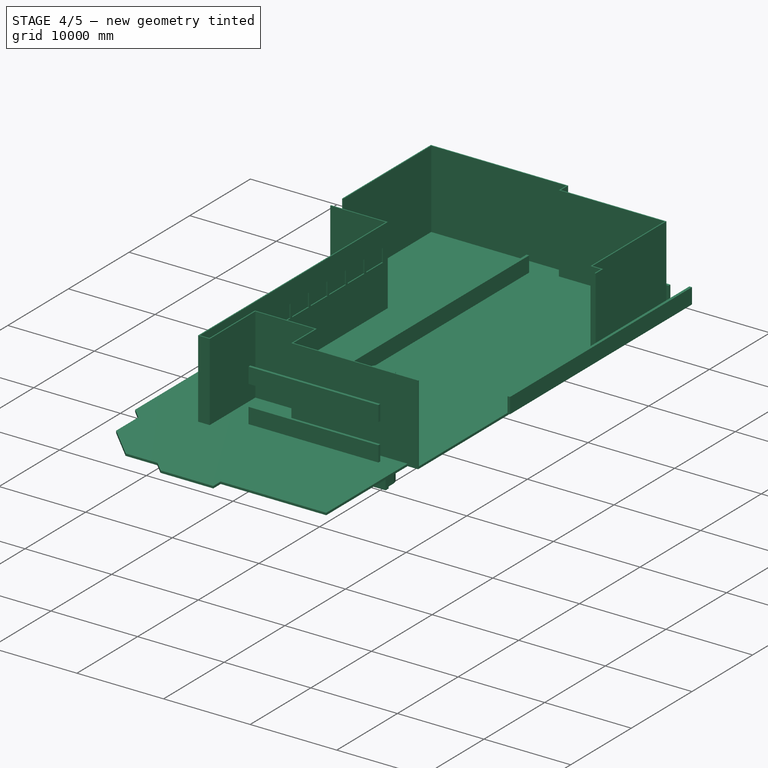
[diagram: stage 4 of 5 — iso view after this stage's code; geometry added in this stage tinted green]
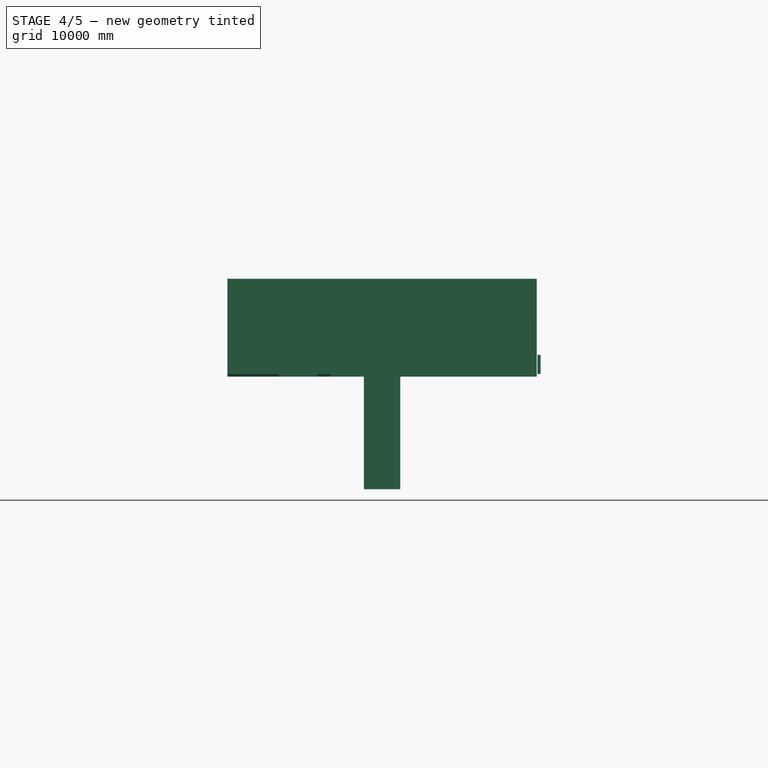
[diagram: stage 4 of 5 — front view after this stage's code; geometry added in this stage tinted green]
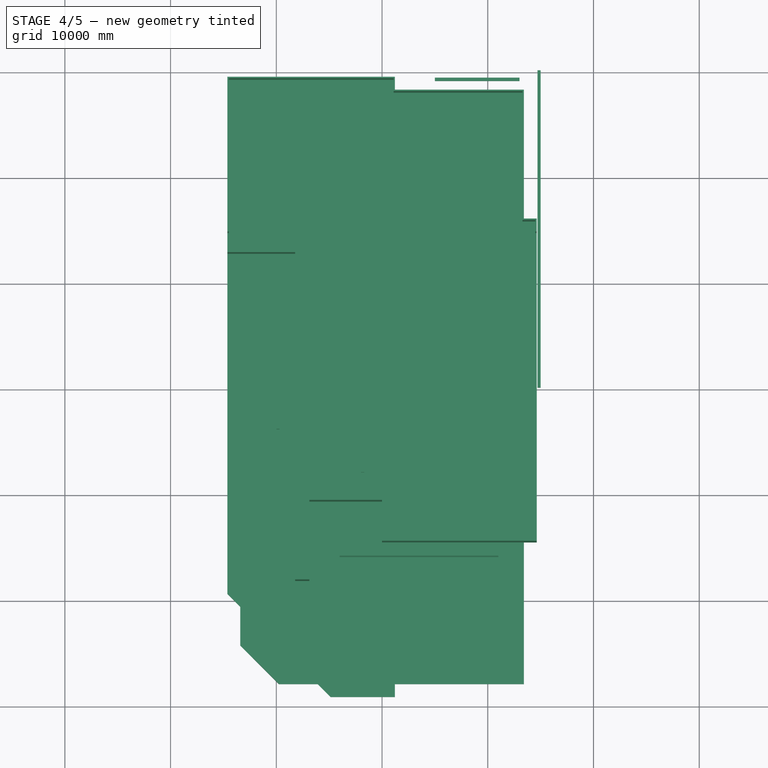
[diagram: stage 4 of 5 — top view after this stage's code; geometry added in this stage tinted green]
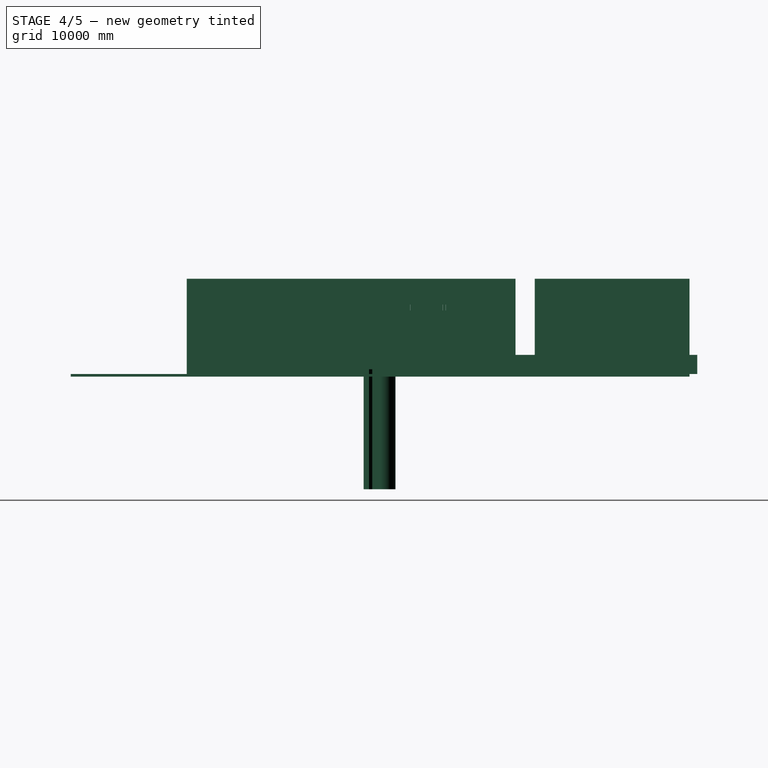
[diagram: stage 4 of 5 — right view after this stage's code; geometry added in this stage tinted green]
FEATURE [Part::Box] Box005  label="Cube004"
  AttacherType = Attacher::AttachEngine3D
  Height = 300
  Length = 400
  Placement = pos=(0,0,-310) rot=(0,0,1;0rad)
  Width = 400
FEATURE [Part::Box] Box006  label="Cube005"
  AttacherType = Attacher::AttachEngine3D
  Height = 300
  Length = 200
  Placement = pos=(100,100,-310) rot=(0,0,1;0rad)
  Width = 200
FEATURE [Part::Box] Box007  label="Cube006"
  AttacherType = Attacher::AttachEngine3D
  Height = 10
  Length = 300
  Placement = pos=(50,50,-20) rot=(0,0,1;0rad)
  Width = 300
FEATURE [Part::Box] Box008  label="Cube007"
  AttacherType = Attacher::AttachEngine3D
  Height = 460
  Length = 500
  Placement = pos=(-50,-50,-310) rot=(0,0,1;0rad)
  Width = 500
FEATURE [Part::Box] Box009  label="Cube008"
  AttacherType = Attacher::AttachEngine3D
  Height = 410
  Length = 400
  Placement = pos=(0,0,-310) rot=(0,0,1;0rad)
  Width = 400
FEATURE [Part::Cut] Cut002
  Base = -> Box005
  Tool = -> Box006
FEATURE [Part::Cut] Cut004  label="Pb_Block_03"
  Base = -> Box008
  Tool = -> Box009
FEATURE [Part::Box] Box  label="Cube"
  AttacherType = Attacher::AttachEngine3D
  Height = 800
  Length = 800
  Placement = pos=(-200,-200,300) rot=(1,0,0;4.71239rad)
  Width = 610
FEATURE [Part::Cut] Cut  label="HDPE_Block_01"
  Base = -> Box
  Refine = true
  Tool = -> Box012
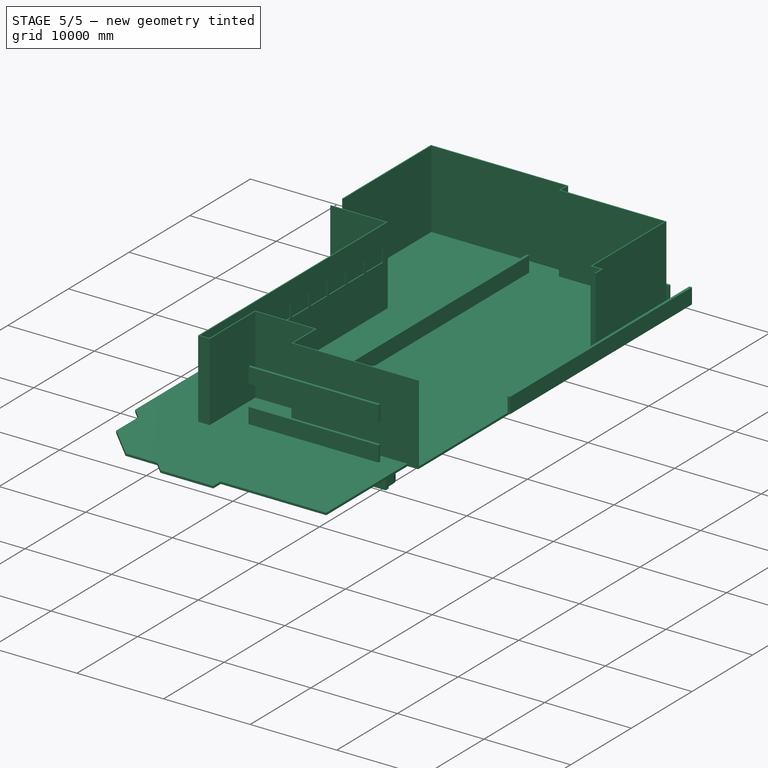
[diagram: stage 5 of 5 — iso view after this stage's code; geometry added in this stage tinted green]
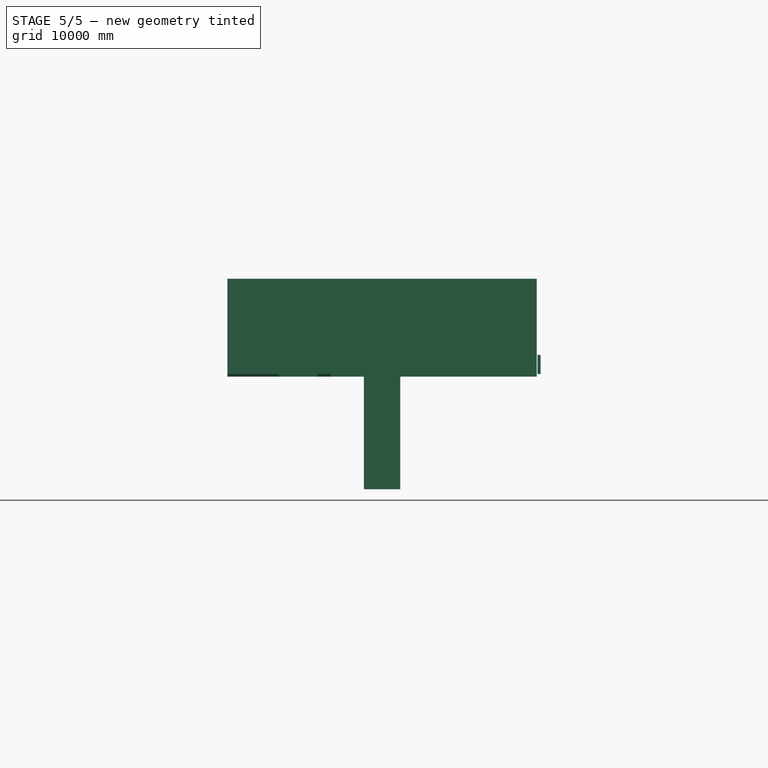
[diagram: stage 5 of 5 — front view after this stage's code; geometry added in this stage tinted green]
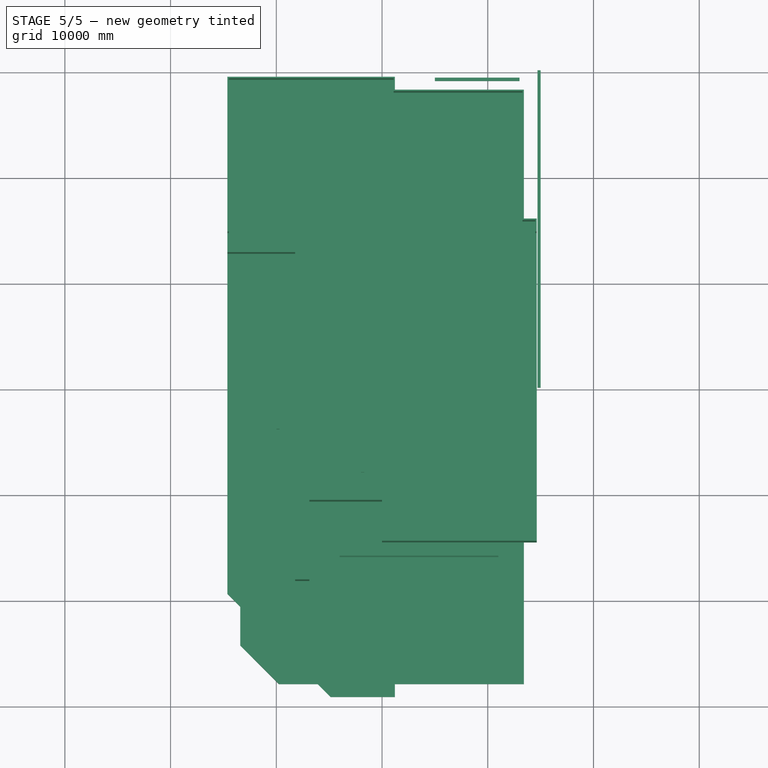
[diagram: stage 5 of 5 — top view after this stage's code; geometry added in this stage tinted green]
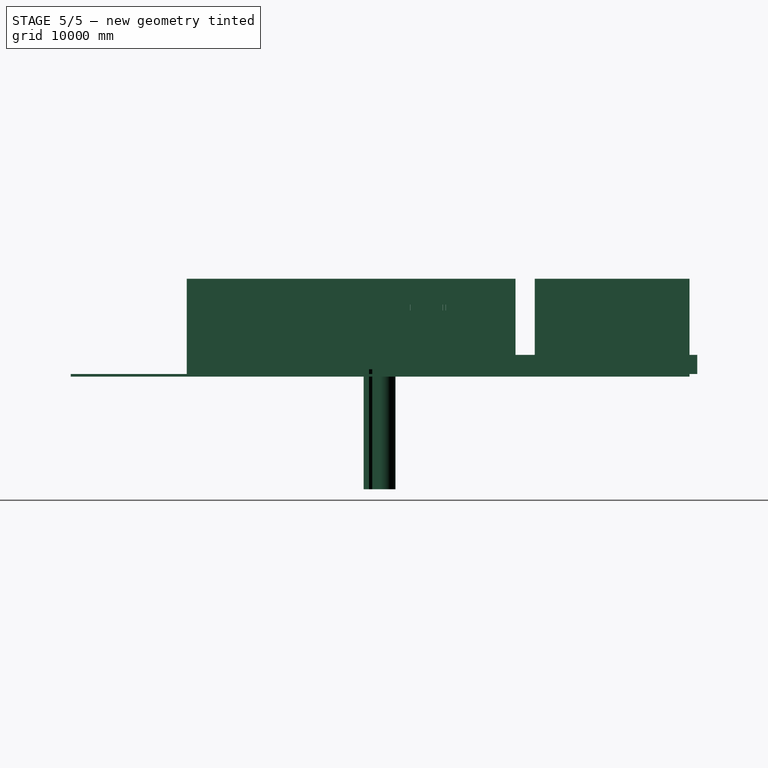
[diagram: stage 5 of 5 — right view after this stage's code; geometry added in this stage tinted green]
FEATURE [Sketcher::SketchObject] Sketch
  ArcFitTolerance = 1e-06
  AttachmentSupport = -> [XY_Plane001]
  FullyConstrained = true
  MakeInternals = false
  MapMode = 5
  sketch-geometry (55):
    g0: LineSegment [constr] StartX=14630.4 StartY=29260.8 StartZ=0 EndX=-14630.4 EndY=29260.8 EndZ=0
    g1: LineSegment [constr] StartX=-14630.4 StartY=29260.8 StartZ=0 EndX=-14630.4 EndY=-29260.8 EndZ=0
    g2: LineSegment [constr] StartX=-14630.4 StartY=-29260.8 StartZ=0 EndX=14630.4 EndY=-29260.8 EndZ=0
    g3: LineSegment [constr] StartX=14630.4 StartY=-29260.8 StartZ=0 EndX=14630.4 EndY=29260.8 EndZ=0
    g4: LineSegment [constr] StartX=-14630.4 StartY=-14630.4 StartZ=0 EndX=14630.4 EndY=-14630.4 EndZ=0
    g5: LineSegment [constr] StartX=-14630.4 StartY=14630.4 StartZ=0 EndX=14630.4 EndY=14630.4 EndZ=0
    g6: LineSegment [constr] StartX=-13411.2 StartY=-28041.6 StartZ=0 EndX=13411.2 EndY=-28041.6 EndZ=0
    g7: LineSegment [constr] StartX=13411.2 StartY=-28041.6 StartZ=0 EndX=13411.2 EndY=28041.6 EndZ=0
    g8: LineSegment [constr] StartX=13411.2 StartY=28041.6 StartZ=0 EndX=-13411.2 EndY=28041.6 EndZ=0
    g9: LineSegment [constr] StartX=-13411.2 StartY=28041.6 StartZ=0 EndX=-13411.2 EndY=-28041.6 EndZ=0
    g10: LineSegment StartX=13411.2 StartY=15849.6 StartZ=0 EndX=14630.4 EndY=15849.6 EndZ=0
    g11: LineSegment StartX=1219.2 StartY=28041.6 StartZ=0 EndX=1219.2 EndY=29260.8 EndZ=0
    g12: LineSegment StartX=13411.2 StartY=15849.6 StartZ=0 EndX=13411.2 EndY=28041.6 EndZ=0
    g13: LineSegment StartX=13411.2 StartY=28041.6 StartZ=0 EndX=1219.2 EndY=28041.6 EndZ=0
    g14: LineSegment StartX=14630.4 StartY=15849.6 StartZ=0 EndX=14630.4 EndY=-14630.4 EndZ=0
    g15: LineSegment StartX=14630.4 StartY=-14630.4 StartZ=0 EndX=13411.2 EndY=-14630.4 EndZ=0
    g16: LineSegment StartX=13411.2 StartY=-14630.4 StartZ=0 EndX=13411.2 EndY=-28041.6 EndZ=0
    g17: LineSegment StartX=1219.2 StartY=-28041.6 StartZ=0 EndX=1219.2 EndY=-29260.8 EndZ=0
    g18: LineSegment StartX=13411.2 StartY=-28041.6 StartZ=0 EndX=1219.2 EndY=-28041.6 EndZ=0
    g19: LineSegment StartX=1219.2 StartY=29260.8 StartZ=0 EndX=-14630.4 EndY=29260.8 EndZ=0
    g20: LineSegment StartX=-14630.4 StartY=29260.8 StartZ=0 EndX=-14630.4 EndY=-14630.4 EndZ=0
    g21: GeomPoint X=-14630.4 Y=-19507.2 Z=0
    g22: GeomPoint X=-4876.8 Y=-29260.8 Z=0
    g23: LineSegment [constr] StartX=-14630.4 StartY=-19507.2 StartZ=0 EndX=-4876.8 EndY=-29260.8 EndZ=0
    g24: LineSegment StartX=-14630.4 StartY=-19507.2 StartZ=0 EndX=-14630.4 EndY=-14630.4 EndZ=0
    g25: LineSegment StartX=1219.2 StartY=-29260.8 StartZ=0 EndX=-4876.8 EndY=-29260.8 EndZ=0
    g26: GeomPoint X=-6096 Y=-28041.6 Z=0
    g27: GeomPoint X=-13411.2 Y=-20726.4 Z=0
    g28: GeomPoint [constr] X=-14630.4 Y=-24384 Z=0
    g29: LineSegment [constr] StartX=-14630.4 StartY=-24384 StartZ=0 EndX=14630.4 EndY=-24384 EndZ=0
    g30: GeomPoint [constr] X=-13411.2 Y=-24384 Z=0
    g31: LineSegment StartX=-14630.4 StartY=-19507.2 StartZ=0 EndX=-13411.2 EndY=-20726.4 EndZ=0
    g32: LineSegment StartX=-13411.2 StartY=-20726.4 StartZ=0 EndX=-13411.2 EndY=-24384 EndZ=0
    g33: LineSegment StartX=-13411.2 StartY=-24384 StartZ=0 EndX=-9753.6 EndY=-28041.6 EndZ=0
    g34: LineSegment StartX=-4876.8 StartY=-29260.8 StartZ=0 EndX=-6096 EndY=-28041.6 EndZ=0
    g35: LineSegment StartX=-9753.6 StartY=-28041.6 StartZ=0 EndX=-6096 EndY=-28041.6 EndZ=0
    g36: GeomPoint [constr] X=-14630.4 Y=-18288 Z=0
    g37: LineSegment [constr] StartX=-14630.4 StartY=-18288 StartZ=0 EndX=14630.4 EndY=-18288 EndZ=0
    g38: GeomPoint [constr] X=-6314.54 Y=0 Z=0
    g39: GeomPoint X=0 Y=-9448.9 Z=0
    g40: LineSegment [constr] StartX=-8219.54 StartY=29260.8 StartZ=0 EndX=-8219.54 EndY=-18288 EndZ=0
    g41: LineSegment [constr] StartX=-13411.2 StartY=-10769.7 StartZ=0 EndX=13411.2 EndY=-10769.7 EndZ=0
    g42: GeomPoint [constr] X=7.069e-13 Y=-14630.4 Z=0
    g43: LineSegment StartX=-8219.54 StartY=29260.8 StartZ=0 EndX=-8219.54 EndY=-18288 EndZ=0
    g44: GeomPoint X=9.095e-13 Y=-10769.7 Z=0
    g45: LineSegment StartX=7.069e-13 StartY=-14630.4 StartZ=0 EndX=9.095e-13 EndY=-10769.7 EndZ=0
    g46: LineSegment StartX=11148 StartY=-14630.4 StartZ=0 EndX=11148 EndY=-914.4 EndZ=0
    g47: GeomPoint X=8925.46 Y=0 Z=0
    g48: LineSegment StartX=7.069e-13 StartY=-14630.4 StartZ=0 EndX=11148 EndY=-14630.4 EndZ=0
    g49: LineSegment StartX=-8219.54 StartY=-18288 StartZ=0 EndX=-6873.34 EndY=-18288 EndZ=0
    g50: LineSegment StartX=-6873.34 StartY=-18288 StartZ=0 EndX=-6873.34 EndY=-10769.7 EndZ=0
    g51: LineSegment StartX=-6873.34 StartY=-10769.7 StartZ=0 EndX=9.095e-13 EndY=-10769.7 EndZ=0
    g52: LineSegment StartX=11148 StartY=-914.4 StartZ=0 EndX=14630.4 EndY=-914.4 EndZ=0
    g53: LineSegment StartX=-8219.54 StartY=12674.6 StartZ=0 EndX=-14630.4 EndY=12674.6 EndZ=0
    g54: LineSegment StartX=-8219.54 StartY=-8293.2 StartZ=0 EndX=-14630.4 EndY=-8293.2 EndZ=0
  constraints (140):
    c: Coincident(g0,g1)
    c: Coincident(g1,g2)
    c: Coincident(g2,g3)
    c: Coincident(g3,g0)
    c: Horizontal(g0)
    c: Horizontal(g2)
    c: Vertical(g1)
    c: Vertical(g3)
    c: Symmetric(g0,g1,g-1)
    c: DistanceY(g3,g3) = 58521.6
    c: DistanceX(g0,g0) = 29260.8
    c: PointOnObject(g4,g1)
    c: PointOnObject(g4,g3)
    c: Horizontal(g4)
    c: PointOnObject(g5,g3)
    c: Horizontal(g5)
    c: Symmetric(g5,g4,g-1)
    c: DistanceY(g4,g5) = 29260.8
    c: Coincident(g6,g7)
    c: Coincident(g7,g8)
    c: Coincident(g8,g9)
    c: Coincident(g9,g6)
    c: Horizontal(g6)
    c: Horizontal(g8)
    c: Vertical(g7)
    c: Vertical(g9)
    c: Symmetric(g7,g6,g-1)
    c: Distance(g6,g1) = 1219.2
    c: Distance(g6,g2) = 1219.2
    c: PointOnObject(g10,g7)
    c: PointOnObject(g10,g3)
    c: Horizontal(g10)
    c: PointOnObject(g11,g8)
    c: PointOnObject(g11,g0)
    c: Vertical(g11)
    c: Distance(g11,g-2) = 1219.2
    c: Distance(g10,g5) = 1219.2
    c: Coincident(g12,g10)
    c: Coincident(g12,g7)
    c: Coincident(g13,g7)
    c: Coincident(g13,g11)
    c: Coincident(g14,g4)
    c: Coincident(g14,g10)
    c: Coincident(g15,g4)
    c: PointOnObject(g15,g7)
    c: PointOnObject(g15,g4)
    c: Coincident(g16,g15)
    c: Coincident(g16,g6)
    c: PointOnObject(g17,g6)
    c: PointOnObject(g17,g2)
    c: Vertical(g17)
    c: Distance(g17,g-2) = 1219.2
    c: Coincident(g18,g6)
    c: Coincident(g18,g17)
    c: Coincident(g19,g11)
    c: Coincident(g19,g0)
    c: Coincident(g20,g0)
    c: Coincident(g20,g4)
    c: PointOnObject(g21,g1)
    c: PointOnObject(g22,g2)
    c: Distance(g21,g4) = 4876.8
    c: Coincident(g23,g21)
    c: Coincident(g23,g22)
    c: Angle(g1,g23) = 0.785398
    c: Coincident(g24,g21)
    c: Coincident(g24,g4)
    c: Coincident(g25,g17)
    c: Coincident(g25,g22)
    c: PointOnObject(g26,g23)
    c: PointOnObject(g27,g23)
    c: PointOnObject(g26,g6)
    c: PointOnObject(g27,g9)
    c: Symmetric(g1,g21,g28)
    c: Coincident(g29,g28)
    c: Horizontal(g29)
    c: PointOnObject(g29,g3)
    c: PointOnObject(g30,g9)
    c: PointOnObject(g30,g29)
    c: Coincident(g31,g21)
    c: Coincident(g31,g27)
    c: Coincident(g32,g27)
    c: Coincident(g32,g30)
    c: Coincident(g33,g30)
    c: PointOnObject(g33,g6)
    c: Angle(g9,g33) = 0.785398
    c: Coincident(g34,g22)
    c: Coincident(g34,g26)
    c: Coincident(g35,g33)
    c: Coincident(g35,g26)
    c: PointOnObject(g36,g24)
    c: Distance(g36,g4) = 3657.6
    c: Coincident(g37,g36)
    c: PointOnObject(g37,g3)
    c: Horizontal(g37)
    c: PointOnObject(g38,g-1)
    c: Distance(g38,g-2) = 6314.54
    c: PointOnObject(g39,g-2)
    c: Distance(g39,g-1) = 9448.9
    c: PointOnObject(g40,g37)
    c: Vertical(g40)
    c: Distance(g38,g40) = 1905
    c: PointOnObject(g41,g9)
    c: PointOnObject(g41,g7)
    c: Horizontal(g41)
    c: Distance(g39,g41) = 1320.8
    c: Symmetric(g4,g4,g42)
    c: Coincident(g43,g40)
    c: Symmetric(g41,g41,g44)
    c: Coincident(g45,g42)
    c: Coincident(g45,g44)
    c: PointOnObject(g46,g4)
    c: Vertical(g46)
    c: PointOnObject(g47,g-1)
    c: Distance(g47,g-2) = 8925.46
    c: Distance(g47,g46) = 2222.5
    c: Coincident(g48,g42)
    c: Coincident(g48,g46)
    c: Coincident(g49,g40)
    c: PointOnObject(g49,g37)
    c: DistanceX(g49,g49) = 1346.2
    c: Coincident(g50,g49)
    c: PointOnObject(g50,g41)
    c: Vertical(g50)
    c: Coincident(g51,g50)
    c: Coincident(g51,g44)
    c: Distance(g46,g-1) = 914.4
    c: Coincident(g52,g46)
    c: Horizontal(g52)
    c: PointOnObject(g52,g14)
    c: PointOnObject(g43,g19)
    c: Vertical(g43)
    c: PointOnObject(g40,g19)
    c: PointOnObject(g53,g43)
    c: PointOnObject(g53,g20)
    c: Horizontal(g53)
    c: PointOnObject(g54,g43)
    c: PointOnObject(g54,g20)
    c: Horizontal(g54)
    c: Distance(g53,g5) = 1955.8
    c: Distance(g54,g41) = 2476.5
FEATURE [PartDesign::Body] Body  label="FloorPlanWhole"
  AllowCompound = false
  Group = -> [Sketch]
  Origin = -> Origin001
FEATURE [Part::Box] Box002  label="Pb_Block_01"
  AttacherType = Attacher::AttachEngine3D
  Height = 100
  Length = 400
  Width = 400
FEATURE [Part::Box] Box003  label="Cube002"
  AttacherType = Attacher::AttachEngine3D
  Height = 10
  Length = 400
  Placement = pos=(0,0,-10) rot=(0,0,1;0rad)
  Width = 400
FEATURE [Part::Box] Box004  label="Cube003"
  AttacherType = Attacher::AttachEngine3D
  Height = 10
  Length = 300
  Placement = pos=(50,50,-20) rot=(0,0,1;0rad)
  Width = 300
FEATURE [Part::Box] Box010  label="Cube009"
  AttacherType = Attacher::AttachEngine3D
  Height = 290
  Length = 200
  Placement = pos=(100,100,-310) rot=(0,0,1;0rad)
  Width = 200
FEATURE [Part::Box] Box011  label="Cube010"
  AttacherType = Attacher::AttachEngine3D
  Height = 290
  Length = 100
  Placement = pos=(150,150,-310) rot=(0,0,1;0rad)
  Width = 100
FEATURE [Part::Cut] Cut003  label="Pb_Block_02"
  Base = -> Cut002
  Tool = -> Box007
FEATURE [Part::Cut] Cut005  label="HDPE_Block_02"
  Base = -> Box010
  Tool = -> Box011
FEATURE [Part::Fuse] Fusion  label="W_Plate"
  Base = -> Box003
  Tool = -> Box004
FEATURE [Part::MultiFuse] Fusion001  label="Pb_Block"
  Refine = true
  Shapes = -> [Box002,Cut003,Cut004]
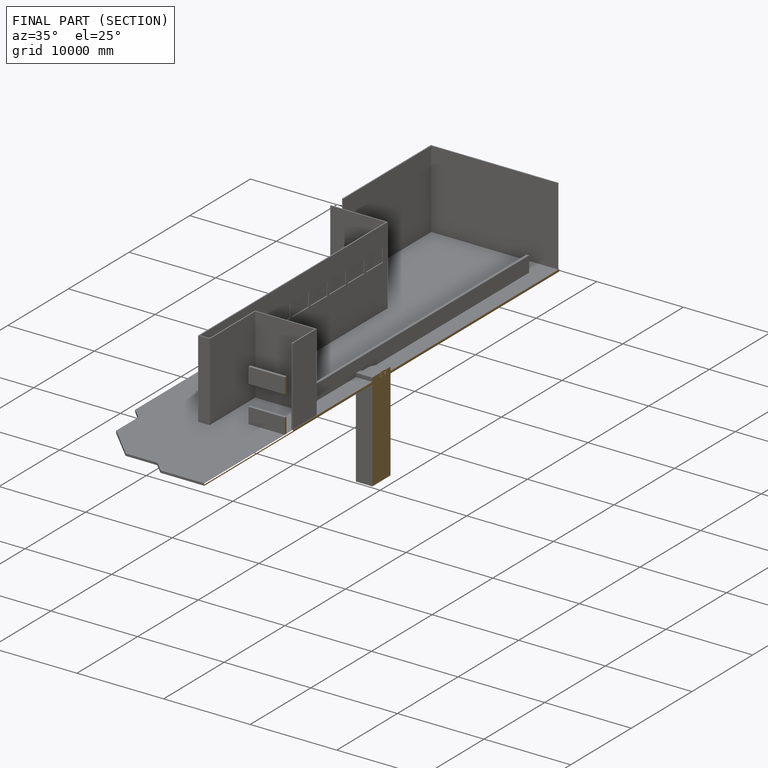
[diagram: finished part — half-section view (interior)]
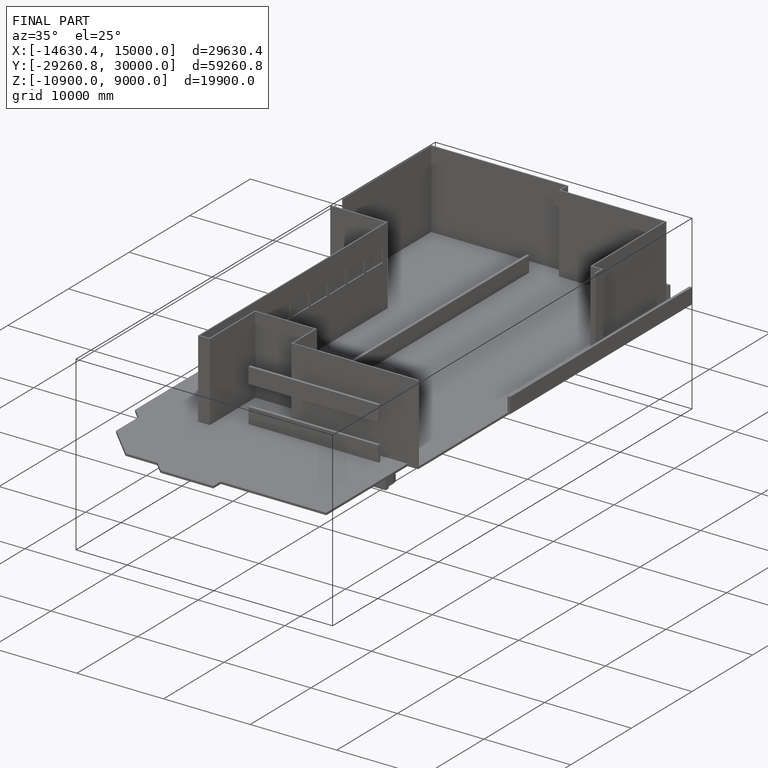
[diagram: finished part — iso view with bounding-box wireframe]
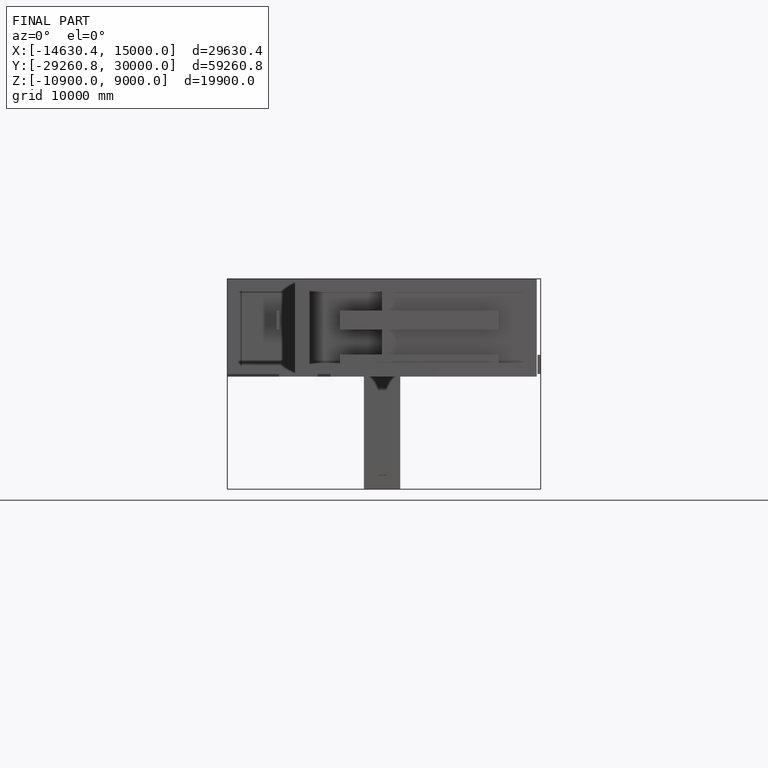
[diagram: finished part — front view with bounding-box wireframe]
